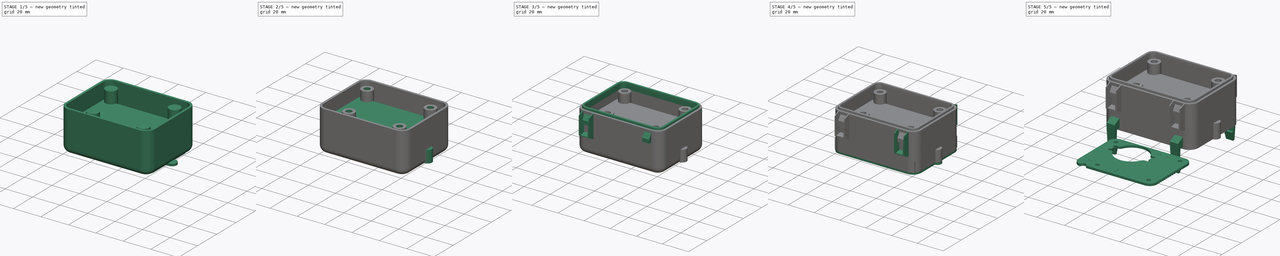
[diagram: build sequence overview — one tinted view per stage of 5, left to right]
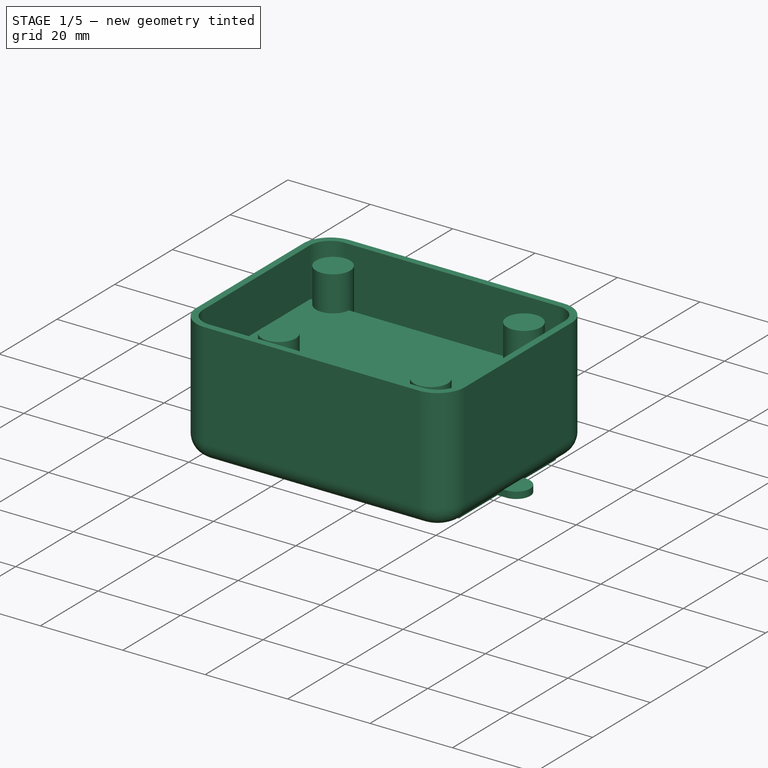
[diagram: stage 1 of 5 — iso view after this stage's code; geometry added in this stage tinted green]
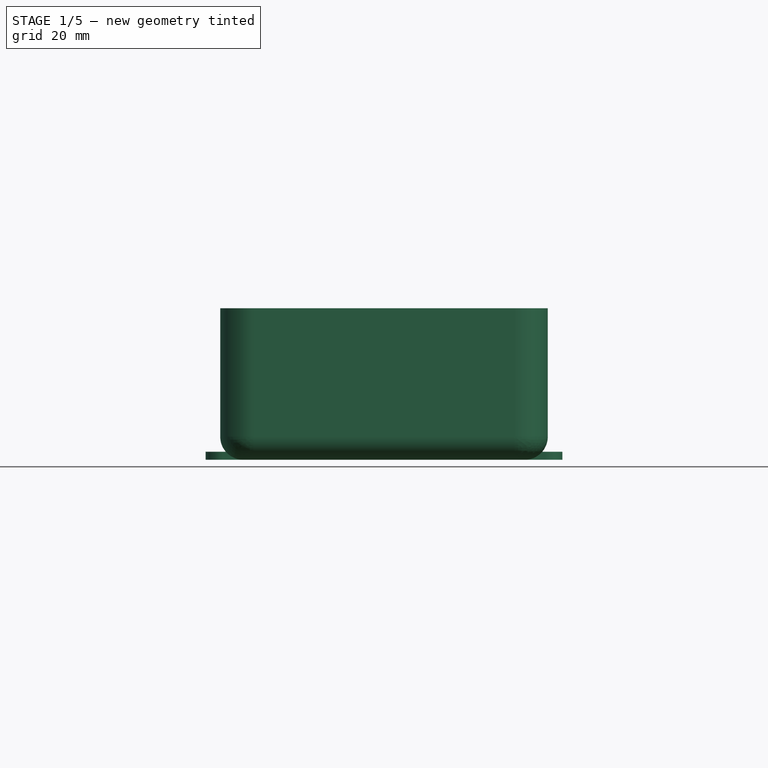
[diagram: stage 1 of 5 — front view after this stage's code; geometry added in this stage tinted green]
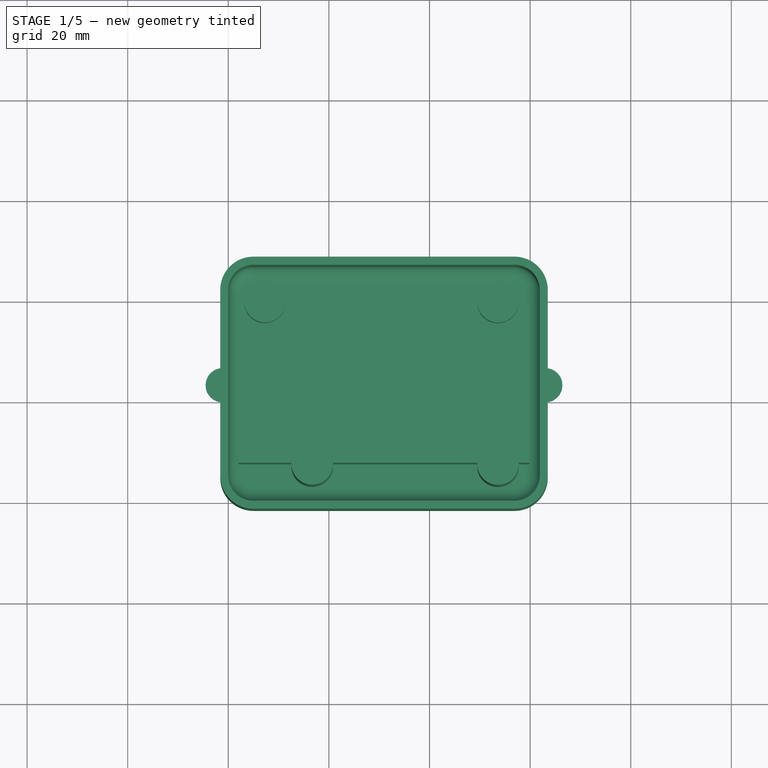
[diagram: stage 1 of 5 — top view after this stage's code; geometry added in this stage tinted green]
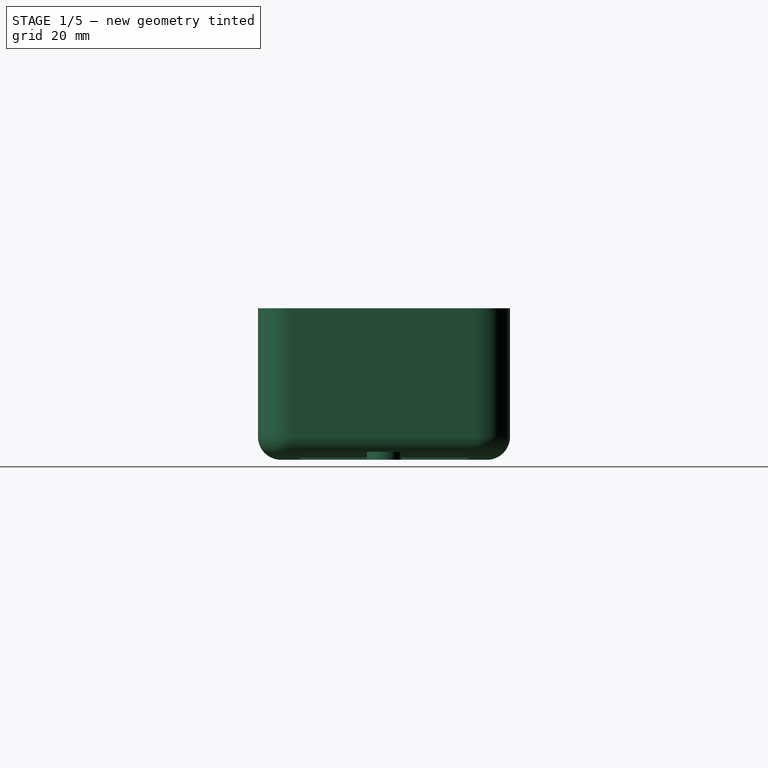
[diagram: stage 1 of 5 — right view after this stage's code; geometry added in this stage tinted green]
FCSTD DOCUMENT  (FreeCAD 0.21R33771 (Git))
Label: Enclosure
License: All rights reserved
LicenseURL: http://en.wikipedia.org/wiki/All_rights_reserved
objects: App::Part×35, Part::Feature×31, PartDesign::Pad×23, Sketcher::SketchObject×21, PartDesign::Body×16, PartDesign::Fillet×8, PartDesign::Boolean×8, PartDesign::Plane×7, PartDesign::CoordinateSystem×6, PartDesign::Thickness×6, PartDesign::Mirrored×6, PartDesign::Pocket×5, PartDesign::ShapeBinder×4, App::DocumentObjectGroup×3, App::Link×3, PartDesign::Hole×3, PartDesign::MultiTransform×3, PartDesign::Chamfer×3, Spreadsheet::Sheet×2, App::FeaturePython×1, +2 more types
note: 200 computed .brp shape members not serialized (recipe doc carries the construction recipe); baked Part::Feature solids carry a one-line shape summary decoded from their .brp

FEATURE [Sketcher::SketchObject] Sketch
  FullyConstrained = true
  MapMode = 5
  Support = -> [XY_Plane039]
  expr: Constraints[10] = <<dim>>.encw
  expr: Constraints[9] = <<dim>>.encl
  sketch-geometry (4):
    g0: LineSegment StartX=0 StartY=0 StartZ=0 EndX=61.91 EndY=0 EndZ=0
    g1: LineSegment StartX=61.91 StartY=0 StartZ=0 EndX=61.91 EndY=46.91 EndZ=0
    g2: LineSegment StartX=61.91 StartY=46.91 StartZ=0 EndX=0 EndY=46.91 EndZ=0
    g3: LineSegment StartX=0 StartY=46.91 StartZ=0 EndX=0 EndY=0 EndZ=0
  constraints (11):
    c: Coincident(g0,g1)
    c: Coincident(g1,g2)
    c: Coincident(g2,g3)
    c: Coincident(g3,g0)
    c: Horizontal(g0)
    c: Horizontal(g2)
    c: Vertical(g1)
    c: Vertical(g3)
    c: Coincident(g0,g-1)
    c: Distance(g2) = 61.91
    c: Distance(g1) = 46.91
FEATURE [PartDesign::Pad] Pad001
  Direction = (0,0,1)
  Length = 28.535
  Length2 = 10
  Profile = -> Sketch
  ReferenceAxis = -> Sketch [N_Axis]
  Type = 0
  expr: Length = <<dim>>.ench
FEATURE [PartDesign::Fillet] Fillet
  Base = -> Pad001 [Edge1,Edge2,Edge5,Edge8]
  BaseFeature = -> Pad001
  Radius = 5
  SupportTransform = false
  UseAllEdges = false
  expr: Radius = <<dim>>.encrin
FEATURE [PartDesign::Pad] Pad003
  Direction = (0,0,1)
  Length = 26.935
  Length2 = 10
  Profile = -> Sketch002
  ReferenceAxis = -> Sketch002 [N_Axis]
  Type = 0
  expr: Length = <<dim>>.ench - <<dim>>.pcbh
FEATURE [PartDesign::Body] standoffs  label="standoff1"
  Group = -> [LCS_0,Sketch002,Pad003]
  Origin = -> Origin040
  Tip = -> Pad003
FEATURE [App::Link] Elephant0_9_2_002  label="Elephant0.9.2 002"
  AttachedBy = #LCS_1
  AttachedTo = Parent Assembly#LCS_Origin
  LinkPlacement = pos=(-45.981,37.719,-4.2e-15) rot=(0,0,1.11173;0rad)
  LinkedObject = -> Elephant0_9_2_1
  Placement = pos=(-45.981,37.719,-4.2e-15) rot=(0,0,1.11173;0rad)
  SolverId = Asm4EE
  expr: Placement = LCS_Origin.Placement * AttachmentOffset * LCS_1.Placement ^ -1
FEATURE [App::Link] enclosure  label="enclosure001"
  AttachedBy = #LCS_enc
  AttachedTo = Parent Assembly#LCS_Origin
  LinkPlacement = pos=(-30.955,-23.455,-26.935) rot=(0,0,1;0rad)
  LinkedObject = -> Part
  Placement = pos=(-30.955,-23.455,-26.935) rot=(0,0,1;0rad)
  SolverId = Asm4EE
  expr: Placement = LCS_Origin.Placement * AttachmentOffset * LCS_enc.Placement ^ -1
FEATURE [Sketcher::SketchObject] Sketch007
  FullyConstrained = true
  MapMode = 5
  Support = -> [XY_Plane040]
  expr: Constraints[11] = <<dim>>.pcbh2x
  expr: Constraints[12] = <<dim>>.pcbh2y
  expr: Constraints[13] = <<dim>>.pcbh3x
  expr: Constraints[14] = <<dim>>.pcbh3y
  expr: Constraints[15] = <<dim>>.pcbh4x
  expr: Constraints[16] = <<dim>>.pcbh4y
  expr: Constraints[17] = <<dim>>.pcbh1x
  expr: Constraints[18] = <<dim>>.pcbh1y
  expr: Constraints[2] = <<dim>>.hid
  expr: Constraints[30] = <<dim>>.hit
  expr: Constraints[41] = <<dim>>.encl / 2
  expr: Constraints[42] = <<dim>>.encw / 2
  expr: Constraints[44] = <<dim>>.pcbl / 2
  expr: Constraints[45] = <<dim>>.pcbw / 2
  sketch-geometry (17):
    g0: Circle CenterX=7.289 CenterY=39.62 CenterZ=0 NormalX=0 NormalY=0 NormalZ=1 AngleXU=0 Radius=2.139
    g1: Circle CenterX=16.687 CenterY=7.362 CenterZ=0 NormalX=0 NormalY=0 NormalZ=1 AngleXU=0 Radius=2.139
    g2: Circle CenterX=53.618 CenterY=39.584 CenterZ=0 NormalX=0 NormalY=0 NormalZ=1 AngleXU=0 Radius=2.139
    g3: Circle CenterX=53.618 CenterY=7.326 CenterZ=0 NormalX=0 NormalY=0 NormalZ=1 AngleXU=0 Radius=2.139
    g4: LineSegment StartX=30.955 StartY=23.455 StartZ=0 EndX=2.5 EndY=23.455 EndZ=0
    g5: LineSegment StartX=2.5 StartY=23.455 StartZ=0 EndX=2.5 EndY=2.5 EndZ=0
    g6: LineSegment StartX=2.5 StartY=2.5 StartZ=0 EndX=30.955 EndY=2.5 EndZ=0
    g7: LineSegment StartX=30.955 StartY=2.5 StartZ=0 EndX=30.955 EndY=23.455 EndZ=0
    g8: Circle CenterX=7.289 CenterY=39.62 CenterZ=0 NormalX=0 NormalY=0 NormalZ=1 AngleXU=0 Radius=4.139
    g9: Circle CenterX=16.687 CenterY=7.362 CenterZ=0 NormalX=0 NormalY=0 NormalZ=1 AngleXU=0 Radius=4.139
    g10: Circle CenterX=53.618 CenterY=7.326 CenterZ=0 NormalX=0 NormalY=0 NormalZ=1 AngleXU=0 Radius=4.139
    g11: Circle CenterX=53.618 CenterY=39.584 CenterZ=0 NormalX=0 NormalY=0 NormalZ=1 AngleXU=0 Radius=4.139
    g12: LineSegment StartX=14.548 StartY=7.362 StartZ=0 EndX=12.548 EndY=7.362 EndZ=0
    g13: LineSegment StartX=0 StartY=0 StartZ=0 EndX=30.955 EndY=0 EndZ=0
    g14: LineSegment StartX=30.955 StartY=0 StartZ=0 EndX=30.955 EndY=23.455 EndZ=0
    g15: LineSegment StartX=30.955 StartY=23.455 StartZ=0 EndX=0 EndY=23.455 EndZ=0
    g16: LineSegment StartX=0 StartY=23.455 StartZ=0 EndX=0 EndY=0 EndZ=0
  constraints (46):
    c: Equal(g1,g3)
    c: Equal(g3,g2)
    c: Diameter(g1) = 4.278
    c: Coincident(g4,g5)
    c: Coincident(g5,g6)
    c: Coincident(g6,g7)
    c: Coincident(g7,g4)
    c: Horizontal(g4)
    c: Horizontal(g6)
    c: Vertical(g5)
    c: Vertical(g7)
    c: DistanceX(g5,g2) = 51.118
    c: DistanceY(g5,g2) = 37.084
    c: DistanceX(g5,g3) = 51.118
    c: DistanceY(g5,g3) = 4.826
    c: DistanceX(g5,g1) = 14.187
    c: DistanceY(g5,g1) = 4.862
    c: DistanceX(g5,g0) = 4.789
    c: DistanceY(g5,g0) = 37.12
    c: Coincident(g8,g0)
    c: Coincident(g9,g1)
    c: Coincident(g10,g3)
    c: Coincident(g11,g2)
    c: Equal(g8,g11)
    c: Equal(g11,g10)
    c: Equal(g10,g9)
    c: PointOnObject(g12,g1)
    c: PointOnObject(g12,g9)
    c: Horizontal(g12)
    c: Horizontal(g12,g1)
    c: Distance(g12) = 2
    c: Equal(g0,g1)
    c: Coincident(g13,g14)
    c: Coincident(g14,g15)
    c: Coincident(g15,g16)
    c: Coincident(g16,g13)
    c: Horizontal(g13)
    c: Horizontal(g15)
    c: Vertical(g14)
    c: Vertical(g16)
    c: Coincident(g13,g-1)
    c: Distance(g15) = 30.955
    c: Distance(g14) = 23.455
    c: Coincident(g4,g14)
    c: Distance(g6) = 28.455
    c: Distance(g5) = 20.955
FEATURE [PartDesign::Pad] Pad007
  Direction = (0,0,1)
  Length = 26.935
  Length2 = 10
  Profile = -> Sketch007
  ReferenceAxis = -> Sketch007 [N_Axis]
  Type = 0
  expr: Length = <<dim>>.ench - <<dim>>.pcbh
FEATURE [PartDesign::Body] standoffs004  label="standoff2"
  Group = -> [Sketch007,Pad007]
  Origin = -> Origin045
  Tip = -> Pad007
FEATURE [Sketcher::SketchObject] Sketch008
  FullyConstrained = true
  MapMode = 5
  Support = -> [XY_Plane040]
  expr: Constraints[11] = <<dim>>.pcbh2x
  expr: Constraints[12] = <<dim>>.pcbh2y
  expr: Constraints[13] = <<dim>>.pcbh3x
  expr: Constraints[14] = <<dim>>.pcbh3y
  expr: Constraints[15] = <<dim>>.pcbh4x
  expr: Constraints[16] = <<dim>>.pcbh4y
  expr: Constraints[17] = <<dim>>.pcbh1x
  expr: Constraints[18] = <<dim>>.pcbh1y
  expr: Constraints[2] = <<dim>>.hid
  expr: Constraints[30] = <<dim>>.hit
  expr: Constraints[41] = <<dim>>.encl / 2
  expr: Constraints[42] = <<dim>>.encw / 2
  expr: Constraints[44] = <<dim>>.pcbl / 2
  expr: Constraints[45] = <<dim>>.pcbw / 2
  sketch-geometry (17):
    g0: Circle CenterX=7.289 CenterY=39.62 CenterZ=0 NormalX=0 NormalY=0 NormalZ=1 AngleXU=0 Radius=2.139
    g1: Circle CenterX=16.687 CenterY=7.362 CenterZ=0 NormalX=0 NormalY=0 NormalZ=1 AngleXU=0 Radius=2.139
    g2: Circle CenterX=53.618 CenterY=39.584 CenterZ=0 NormalX=0 NormalY=0 NormalZ=1 AngleXU=0 Radius=2.139
    g3: Circle CenterX=53.618 CenterY=7.326 CenterZ=0 NormalX=0 NormalY=0 NormalZ=1 AngleXU=0 Radius=2.139
    g4: LineSegment StartX=30.955 StartY=23.455 StartZ=0 EndX=2.5 EndY=23.455 EndZ=0
    g5: LineSegment StartX=2.5 StartY=23.455 StartZ=0 EndX=2.5 EndY=2.5 EndZ=0
    g6: LineSegment StartX=2.5 StartY=2.5 StartZ=0 EndX=30.955 EndY=2.5 EndZ=0
    g7: LineSegment StartX=30.955 StartY=2.5 StartZ=0 EndX=30.955 EndY=23.455 EndZ=0
    g8: Circle CenterX=7.289 CenterY=39.62 CenterZ=0 NormalX=0 NormalY=0 NormalZ=1 AngleXU=0 Radius=4.139
    g9: Circle CenterX=16.687 CenterY=7.362 CenterZ=0 NormalX=0 NormalY=0 NormalZ=1 AngleXU=0 Radius=4.139
    g10: Circle CenterX=53.618 CenterY=7.326 CenterZ=0 NormalX=0 NormalY=0 NormalZ=1 AngleXU=0 Radius=4.139
    g11: Circle CenterX=53.618 CenterY=39.584 CenterZ=0 NormalX=0 NormalY=0 NormalZ=1 AngleXU=0 Radius=4.139
    g12: LineSegment StartX=14.548 StartY=7.362 StartZ=0 EndX=12.548 EndY=7.362 EndZ=0
    g13: LineSegment StartX=0 StartY=0 StartZ=0 EndX=30.955 EndY=0 EndZ=0
    g14: LineSegment StartX=30.955 StartY=0 StartZ=0 EndX=30.955 EndY=23.455 EndZ=0
    g15: LineSegment StartX=30.955 StartY=23.455 StartZ=0 EndX=0 EndY=23.455 EndZ=0
    g16: LineSegment StartX=0 StartY=23.455 StartZ=0 EndX=0 EndY=0 EndZ=0
  constraints (46):
    c: Equal(g1,g3)
    c: Equal(g3,g2)
    c: Diameter(g1) = 4.278
    c: Coincident(g4,g5)
    c: Coincident(g5,g6)
    c: Coincident(g6,g7)
    c: Coincident(g7,g4)
    c: Horizontal(g4)
    c: Horizontal(g6)
    c: Vertical(g5)
    c: Vertical(g7)
    c: DistanceX(g5,g2) = 51.118
    c: DistanceY(g5,g2) = 37.084
    c: DistanceX(g5,g3) = 51.118
    c: DistanceY(g5,g3) = 4.826
    c: DistanceX(g5,g1) = 14.187
    c: DistanceY(g5,g1) = 4.862
    c: DistanceX(g5,g0) = 4.789
    c: DistanceY(g5,g0) = 37.12
    c: Coincident(g8,g0)
    c: Coincident(g9,g1)
    c: Coincident(g10,g3)
    c: Coincident(g11,g2)
    c: Equal(g8,g11)
    c: Equal(g11,g10)
    c: Equal(g10,g9)
    c: PointOnObject(g12,g1)
    c: PointOnObject(g12,g9)
    c: Horizontal(g12)
    c: Horizontal(g12,g1)
    c: Distance(g12) = 2
    c: Equal(g0,g1)
    c: Coincident(g13,g14)
    c: Coincident(g14,g15)
    c: Coincident(g15,g16)
    c: Coincident(g16,g13)
    c: Horizontal(g13)
    c: Horizontal(g15)
    c: Vertical(g14)
    c: Vertical(g16)
    c: Coincident(g13,g-1)
    c: Distance(g15) = 30.955
    c: Distance(g14) = 23.455
    c: Coincident(g4,g14)
    c: Distance(g6) = 28.455
    c: Distance(g5) = 20.955
FEATURE [PartDesign::Pad] Pad008
  Direction = (0,0,1)
  Length = 26.935
  Length2 = 10
  Profile = -> Sketch008
  ReferenceAxis = -> Sketch008 [N_Axis]
  Type = 0
  expr: Length = <<dim>>.ench - <<dim>>.pcbh
FEATURE [PartDesign::Body] standoffs005  label="standoff3"
  Group = -> [Sketch008,Pad008]
  Origin = -> Origin046
  Tip = -> Pad008
FEATURE [Sketcher::SketchObject] Sketch009
  FullyConstrained = true
  MapMode = 5
  Support = -> [XY_Plane040]
  expr: Constraints[11] = <<dim>>.pcbh2x
  expr: Constraints[12] = <<dim>>.pcbh2y
  expr: Constraints[13] = <<dim>>.pcbh3x
  expr: Constraints[14] = <<dim>>.pcbh3y
  expr: Constraints[15] = <<dim>>.pcbh4x
  expr: Constraints[16] = <<dim>>.pcbh4y
  expr: Constraints[17] = <<dim>>.pcbh1x
  expr: Constraints[18] = <<dim>>.pcbh1y
  expr: Constraints[2] = <<dim>>.hid
  expr: Constraints[30] = <<dim>>.hit
  expr: Constraints[41] = <<dim>>.encl / 2
  expr: Constraints[42] = <<dim>>.encw / 2
  expr: Constraints[44] = <<dim>>.pcbl / 2
  expr: Constraints[45] = <<dim>>.pcbw / 2
  sketch-geometry (17):
    g0: Circle CenterX=7.289 CenterY=39.62 CenterZ=0 NormalX=0 NormalY=0 NormalZ=1 AngleXU=0 Radius=2.139
    g1: Circle CenterX=16.687 CenterY=7.362 CenterZ=0 NormalX=0 NormalY=0 NormalZ=1 AngleXU=0 Radius=2.139
    g2: Circle CenterX=53.618 CenterY=39.584 CenterZ=0 NormalX=0 NormalY=0 NormalZ=1 AngleXU=0 Radius=2.139
    g3: Circle CenterX=53.618 CenterY=7.326 CenterZ=0 NormalX=0 NormalY=0 NormalZ=1 AngleXU=0 Radius=2.139
    g4: LineSegment StartX=30.955 StartY=23.455 StartZ=0 EndX=2.5 EndY=23.455 EndZ=0
    g5: LineSegment StartX=2.5 StartY=23.455 StartZ=0 EndX=2.5 EndY=2.5 EndZ=0
    g6: LineSegment StartX=2.5 StartY=2.5 StartZ=0 EndX=30.955 EndY=2.5 EndZ=0
    g7: LineSegment StartX=30.955 StartY=2.5 StartZ=0 EndX=30.955 EndY=23.455 EndZ=0
    g8: Circle CenterX=7.289 CenterY=39.62 CenterZ=0 NormalX=0 NormalY=0 NormalZ=1 AngleXU=0 Radius=4.139
    g9: Circle CenterX=16.687 CenterY=7.362 CenterZ=0 NormalX=0 NormalY=0 NormalZ=1 AngleXU=0 Radius=4.139
    g10: Circle CenterX=53.618 CenterY=7.326 CenterZ=0 NormalX=0 NormalY=0 NormalZ=1 AngleXU=0 Radius=4.139
    g11: Circle CenterX=53.618 CenterY=39.584 CenterZ=0 NormalX=0 NormalY=0 NormalZ=1 AngleXU=0 Radius=4.139
    g12: LineSegment StartX=14.548 StartY=7.362 StartZ=0 EndX=12.548 EndY=7.362 EndZ=0
    g13: LineSegment StartX=0 StartY=0 StartZ=0 EndX=30.955 EndY=0 EndZ=0
    g14: LineSegment StartX=30.955 StartY=0 StartZ=0 EndX=30.955 EndY=23.455 EndZ=0
    g15: LineSegment StartX=30.955 StartY=23.455 StartZ=0 EndX=0 EndY=23.455 EndZ=0
    g16: LineSegment StartX=0 StartY=23.455 StartZ=0 EndX=0 EndY=0 EndZ=0
  constraints (46):
    c: Equal(g1,g3)
    c: Equal(g3,g2)
    c: Diameter(g1) = 4.278
    c: Coincident(g4,g5)
    c: Coincident(g5,g6)
    c: Coincident(g6,g7)
    c: Coincident(g7,g4)
    c: Horizontal(g4)
    c: Horizontal(g6)
    c: Vertical(g5)
    c: Vertical(g7)
    c: DistanceX(g5,g2) = 51.118
    c: DistanceY(g5,g2) = 37.084
    c: DistanceX(g5,g3) = 51.118
    c: DistanceY(g5,g3) = 4.826
    c: DistanceX(g5,g1) = 14.187
    c: DistanceY(g5,g1) = 4.862
    c: DistanceX(g5,g0) = 4.789
    c: DistanceY(g5,g0) = 37.12
    c: Coincident(g8,g0)
    c: Coincident(g9,g1)
    c: Coincident(g10,g3)
    c: Coincident(g11,g2)
    c: Equal(g8,g11)
    c: Equal(g11,g10)
    c: Equal(g10,g9)
    c: PointOnObject(g12,g1)
    c: PointOnObject(g12,g9)
    c: Horizontal(g12)
    c: Horizontal(g12,g1)
    c: Distance(g12) = 2
    c: Equal(g0,g1)
    c: Coincident(g13,g14)
    c: Coincident(g14,g15)
    c: Coincident(g15,g16)
    c: Coincident(g16,g13)
    c: Horizontal(g13)
    c: Horizontal(g15)
    c: Vertical(g14)
    c: Vertical(g16)
    c: Coincident(g13,g-1)
    c: Distance(g15) = 30.955
    c: Distance(g14) = 23.455
    c: Coincident(g4,g14)
    c: Distance(g6) = 28.455
    c: Distance(g5) = 20.955
FEATURE [PartDesign::Pad] Pad009
  Direction = (0,0,1)
  Length = 26.935
  Length2 = 10
  Profile = -> Sketch009
  ReferenceAxis = -> Sketch009 [N_Axis]
  Type = 0
  expr: Length = <<dim>>.ench - <<dim>>.pcbh
FEATURE [PartDesign::Body] standoffs006  label="standoff4"
  Group = -> [Sketch009,Pad009]
  Origin = -> Origin047
  Tip = -> Pad009
FEATURE [Sketcher::SketchObject] Sketch010
  FullyConstrained = true
  MapMode = 5
  Support = -> [XY_Plane047]
  expr: Constraints[15] = <<dim>>.batl * (1 + <<dim>>.batc)
  expr: Constraints[16] = <<dim>>.batw * (1 + <<dim>>.batc)
  expr: Constraints[26] = <<dim>>.encl / 2
  expr: Constraints[27] = <<dim>>.encw / 2
  sketch-geometry (12):
    g0: LineSegment StartX=2.08 StartY=7.705 StartZ=0 EndX=59.83 EndY=7.705 EndZ=0
    g1: LineSegment StartX=59.83 StartY=7.705 StartZ=0 EndX=59.83 EndY=39.205 EndZ=0
    g2: LineSegment StartX=59.83 StartY=39.205 StartZ=0 EndX=2.08 EndY=39.205 EndZ=0
    g3: LineSegment StartX=2.08 StartY=39.205 StartZ=0 EndX=2.08 EndY=7.705 EndZ=0
    g4: LineSegment StartX=30.955 StartY=23.455 StartZ=0 EndX=2.08 EndY=23.455 EndZ=0
    g5: LineSegment StartX=2.08 StartY=23.455 StartZ=0 EndX=2.08 EndY=7.705 EndZ=0
    g6: LineSegment StartX=2.08 StartY=7.705 StartZ=0 EndX=30.955 EndY=7.705 EndZ=0
    g7: LineSegment StartX=30.955 StartY=7.705 StartZ=0 EndX=30.955 EndY=23.455 EndZ=0
    g8: LineSegment StartX=0 StartY=0 StartZ=0 EndX=30.955 EndY=0 EndZ=0
    g9: LineSegment StartX=30.955 StartY=0 StartZ=0 EndX=30.955 EndY=23.455 EndZ=0
    g10: LineSegment StartX=30.955 StartY=23.455 StartZ=0 EndX=0 EndY=23.455 EndZ=0
    g11: LineSegment StartX=0 StartY=23.455 StartZ=0 EndX=0 EndY=0 EndZ=0
  constraints (31):
    c: Coincident(g0,g1)
    c: Coincident(g1,g2)
    c: Coincident(g2,g3)
    c: Coincident(g3,g0)
    c: Horizontal(g0)
    c: Horizontal(g2)
    c: Vertical(g1)
    c: Vertical(g3)
    c: Coincident(g4,g5)
    c: Coincident(g5,g6)
    c: Coincident(g6,g7)
    c: Coincident(g7,g4)
    c: Horizontal(g4)
    c: Vertical(g7)
    c: Coincident(g5,g0)
    c: Distance(g2) = 57.75
    c: Distance(g1) = 31.5
    c: Coincident(g8,g9)
    c: Coincident(g9,g10)
    c: Coincident(g10,g11)
    c: Coincident(g11,g8)
    c: Horizontal(g8)
    c: Horizontal(g10)
    c: Vertical(g9)
    c: Vertical(g11)
    c: Coincident(g8,g-1)
    c: Distance(g10) = 30.955
    c: Distance(g9) = 23.455
    c: Coincident(g4,g9)
    c: Symmetric(g0,g0,g6)
    c: Symmetric(g0,g2,g4)
FEATURE [PartDesign::Pad] Pad010
  Direction = (0,0,1)
  Length = 18.375
  Length2 = 10
  Profile = -> Sketch010
  ReferenceAxis = -> Sketch010 [N_Axis]
  Type = 0
  expr: Length = <<dim>>.bath * (1 + <<dim>>.batc)
FEATURE [PartDesign::Pad] Pad012
  BaseFeature = -> Pad010
  Direction = (0,0,-1)
  Length = 1.6
  Length2 = 10
  Profile = -> Pad010 [Face5]
  Type = 0
  expr: Length = <<dim>>.enctsh
FEATURE [PartDesign::Body] Body002
  Group = -> [Sketch003,Pad002,Fillet001,Thickness002,ShapeBinder001,Binder,Pocket001,Pad013]
  Origin = -> Origin041
  Tip = -> Pad013
FEATURE [Sketcher::SketchObject] Sketch013
  FullyConstrained = true
  MapMode = 5
  Support = -> [XY_Plane047]
  expr: Constraints[15] = <<dim>>.batl * (1 + <<dim>>.batc) + <<dim>>.enctsh + 2 * <<dim>>.enctol
  expr: Constraints[16] = <<dim>>.batw * (1 + <<dim>>.batc) + <<dim>>.enctsh + 2 * <<dim>>.enctol
  expr: Constraints[26] = <<dim>>.encl / 2
  expr: Constraints[27] = <<dim>>.encw / 2
  expr: Constraints[47] = (<<dim>>.hid + <<dim>>.hit) / 2 + <<dim>>.enctol
  expr: Constraints[48] = <<dim>>.hid / 2
  sketch-geometry (22):
    g0: LineSegment StartX=1.026 StartY=6.651 StartZ=0 EndX=60.884 EndY=6.651 EndZ=0
    g1: LineSegment StartX=60.884 StartY=6.651 StartZ=0 EndX=60.884 EndY=40.259 EndZ=0
    g2: LineSegment StartX=60.884 StartY=40.259 StartZ=0 EndX=1.026 EndY=40.259 EndZ=0
    g3: LineSegment StartX=1.026 StartY=40.259 StartZ=0 EndX=1.026 EndY=6.651 EndZ=0
    g4: LineSegment StartX=30.955 StartY=23.455 StartZ=0 EndX=1.026 EndY=23.455 EndZ=0
    g5: LineSegment StartX=1.026 StartY=23.455 StartZ=0 EndX=1.026 EndY=6.651 EndZ=0
    g6: LineSegment StartX=1.026 StartY=6.651 StartZ=0 EndX=30.955 EndY=6.651 EndZ=0
    g7: LineSegment StartX=30.955 StartY=6.651 StartZ=0 EndX=30.955 EndY=23.455 EndZ=0
    g8: LineSegment StartX=0 StartY=0 StartZ=0 EndX=30.955 EndY=0 EndZ=0
    g9: LineSegment StartX=30.955 StartY=0 StartZ=0 EndX=30.955 EndY=23.455 EndZ=0
    g10: LineSegment StartX=30.955 StartY=23.455 StartZ=0 EndX=0 EndY=23.455 EndZ=0
    g11: LineSegment StartX=0 StartY=23.455 StartZ=0 EndX=0 EndY=0 EndZ=0
    g12: ArcOfCircle CenterX=-1.113 CenterY=23.455 CenterZ=0 NormalX=0 NormalY=0 NormalZ=1 AngleXU=0 Radius=3.393 StartAngle=1.5708 EndAngle=4.71239
    g13: ArcOfCircle CenterX=63.023 CenterY=23.455 CenterZ=0 NormalX=0 NormalY=0 NormalZ=1 AngleXU=0 Radius=3.393 StartAngle=4.71239 EndAngle=7.85398
    g14: LineSegment StartX=60.884 StartY=20.062 StartZ=0 EndX=63.023 EndY=20.062 EndZ=0
    g15: LineSegment StartX=-1.11301 StartY=20.062 StartZ=0 EndX=1.026 EndY=20.062 EndZ=0
    g16: LineSegment StartX=1.026 StartY=26.848 StartZ=0 EndX=-1.113 EndY=26.848 EndZ=0
    g17: LineSegment StartX=63.023 StartY=26.848 StartZ=0 EndX=60.884 EndY=26.848 EndZ=0
    g18: LineSegment StartX=1.026 StartY=26.848 StartZ=0 EndX=1.026 EndY=40.259 EndZ=0
    g19: LineSegment StartX=1.026 StartY=20.062 StartZ=0 EndX=1.026 EndY=6.651 EndZ=0
    g20: LineSegment StartX=60.884 StartY=26.848 StartZ=0 EndX=60.884 EndY=40.259 EndZ=0
    g21: LineSegment StartX=60.884 StartY=20.062 StartZ=0 EndX=60.884 EndY=6.651 EndZ=0
  constraints (57):
    c: Coincident(g0,g1)
    c: Coincident(g1,g2)
    c: Coincident(g2,g3)
    c: Coincident(g3,g0)
    c: Horizontal(g0)
    c: Horizontal(g2)
    c: Vertical(g1)
    c: Vertical(g3)
    c: Coincident(g4,g5)
    c: Coincident(g5,g6)
    c: Coincident(g6,g7)
    c: Coincident(g7,g4)
    c: Horizontal(g4)
    c: Vertical(g7)
    c: Coincident(g5,g0)
    c: Distance(g2) = 59.858
    c: Distance(g1) = 33.608
    c: Coincident(g8,g9)
    c: Coincident(g9,g10)
    c: Coincident(g10,g11)
    c: Coincident(g11,g8)
    c: Horizontal(g8)
    c: Horizontal(g10)
    c: Vertical(g9)
    c: Vertical(g11)
    c: Coincident(g8,g-1)
    c: Distance(g10) = 30.955
    c: Distance(g9) = 23.455
    c: Coincident(g4,g9)
    c: Symmetric(g0,g0,g6)
    c: Symmetric(g0,g2,g4)
    c: Coincident(g12,g15) = -1.5708
    c: Coincident(g14,g13) = -1.5708
    c: Equal(g12,g13)
    c: PointOnObject(g12,g10)
    c: Horizontal(g14)
    c: Horizontal(g15)
    c: PointOnObject(g16,g3)
    c: PointOnObject(g14,g1)
    c: PointOnObject(g17,g1)
    c: Symmetric(g12,g13,g4)
    c: Horizontal(g16)
    c: Horizontal(g17)
    c: Tangent(g16,g12) = -1.5708
    c: Tangent(g13,g17) = -1.5708
    c: Symmetric(g15,g16,g4)
    c: Horizontal(g15,g14)
    c: Radius(g12) = 3.393
    c: Distance(g16) = 2.139
    c: Coincident(g18,g16)
    c: Coincident(g18,g2)
    c: Coincident(g19,g15)
    c: Coincident(g19,g0)
    c: Coincident(g20,g17)
    c: Coincident(g20,g1)
    c: Coincident(g21,g14)
    c: Coincident(g21,g0)
FEATURE [PartDesign::Pad] Pad014
  Direction = (0,0,1)
  Length = 1.6
  Length2 = 10
  Profile = -> Sketch013
  ReferenceAxis = -> Sketch013 [N_Axis]
  Reversed = true
  Type = 0
  expr: Length = <<dim>>.enctsh
FEATURE [PartDesign::Body] Body009
  Group = -> [Sketch017,Pad018,Fillet003,Fillet004,Thickness003,Pad020,Boolean005,Boolean006,DatumPlane001,Sketch020,Pocket003,Hole002,Sketch025,Sketch027,Pad025,Pocket005,DatumPlane,DatumPlane005,MultiTransform001,Mirrored002,Mirrored003]
  Origin = -> Origin055
  Tip = -> MultiTransform001
FEATURE [App::Part] Part001  label="lid"
  Group = -> [Body009,LCS_lid]
  Origin = -> Origin054
  Placement = pos=(0,0,30.035) rot=(0,0,1;0rad)
  expr: .Placement.Base.z = <<dim>>.ench + <<dim>>.elh
FEATURE [PartDesign::Fillet] Fillet007
  Base = -> Fillet [Face2]
  BaseFeature = -> Fillet
  Radius = 3
  SupportTransform = false
  UseAllEdges = false
FEATURE [PartDesign::Thickness] Thickness
  Base = -> Fillet007 [Face4]
  BaseFeature = -> Fillet007
  Intersection = false
  Join = 0
  Mode = 0
  SupportTransform = false
  Value = 1.6
  expr: Value = <<dim>>.enctsh
FEATURE [PartDesign::CoordinateSystem] LCS_enc
  AttacherType = Attacher::AttachEngine3D
  AttachmentOffset = pos=(-25.055,-1.6,-32.555) rot=(-0.57735,0.57735,0.57735;2.0944rad)
  MapMode = 14
  Placement = pos=(30.955,23.455,26.935) rot=(0,0,1;0rad)
  Support = -> [Thickness]
  expr: .AttachmentOffset.Base.x = -(<<dim>>.encw / 2) - <<dim>>.enctsh
  expr: .AttachmentOffset.Base.y = -<<dim>>.pcbh
  expr: .AttachmentOffset.Base.z = -(<<dim>>.encl / 2) - <<dim>>.enctsh
FEATURE [PartDesign::CoordinateSystem] LCS_enc_pcb
  AttacherType = Attacher::AttachEngine3D
  AttachmentOffset = pos=(-28.455,-20.955,0) rot=(0,0,1;0rad)
  MapMode = 2
  Placement = pos=(2.5,2.5,26.935) rot=(0,0,1;0rad)
  Support = -> [LCS_enc]
  expr: .AttachmentOffset.Base.x = -<<dim>>.pcbl / 2
  expr: .AttachmentOffset.Base.y = -<<dim>>.pcbw / 2
FEATURE [PartDesign::Boolean] Boolean
  BaseFeature = -> Thickness
  Group = -> [standoffs,standoffs004,standoffs005,standoffs006]
  Type = 0
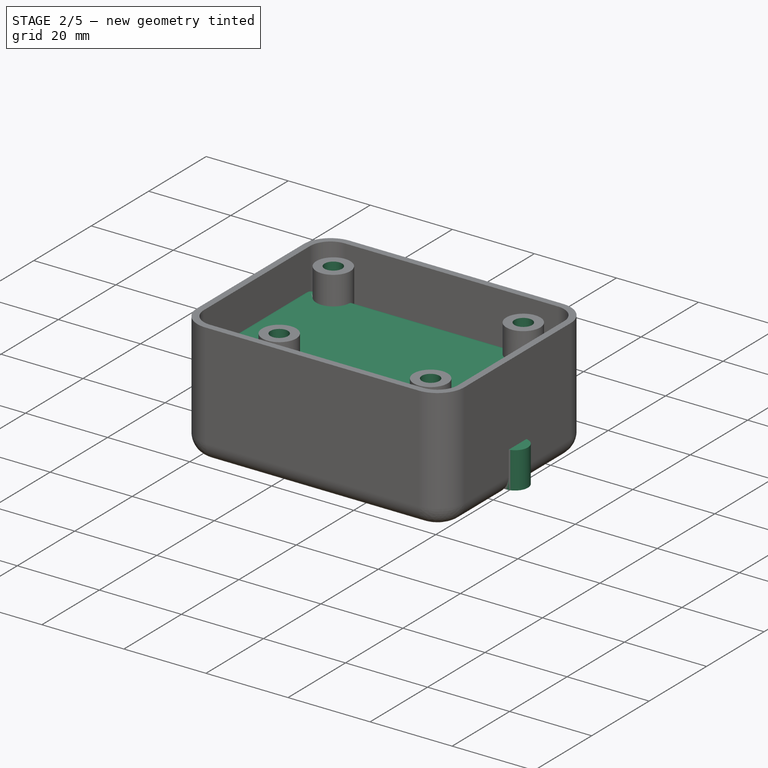
[diagram: stage 2 of 5 — iso view after this stage's code; geometry added in this stage tinted green]
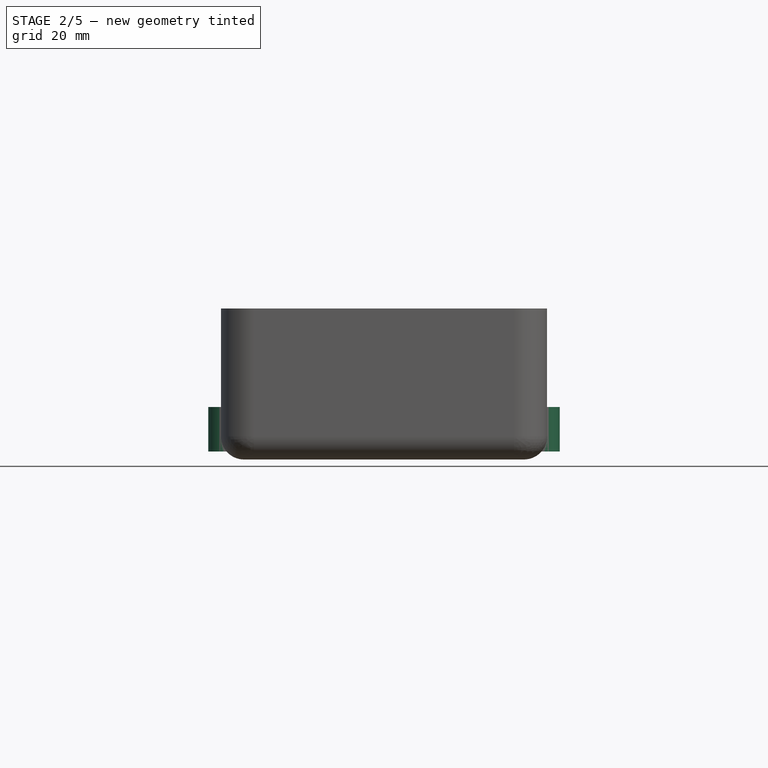
[diagram: stage 2 of 5 — front view after this stage's code; geometry added in this stage tinted green]
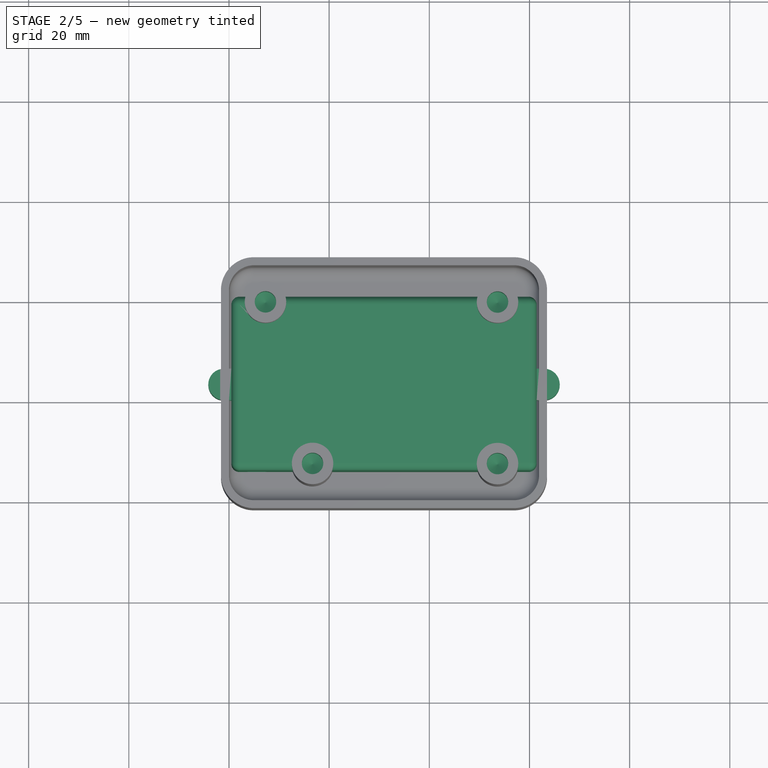
[diagram: stage 2 of 5 — top view after this stage's code; geometry added in this stage tinted green]
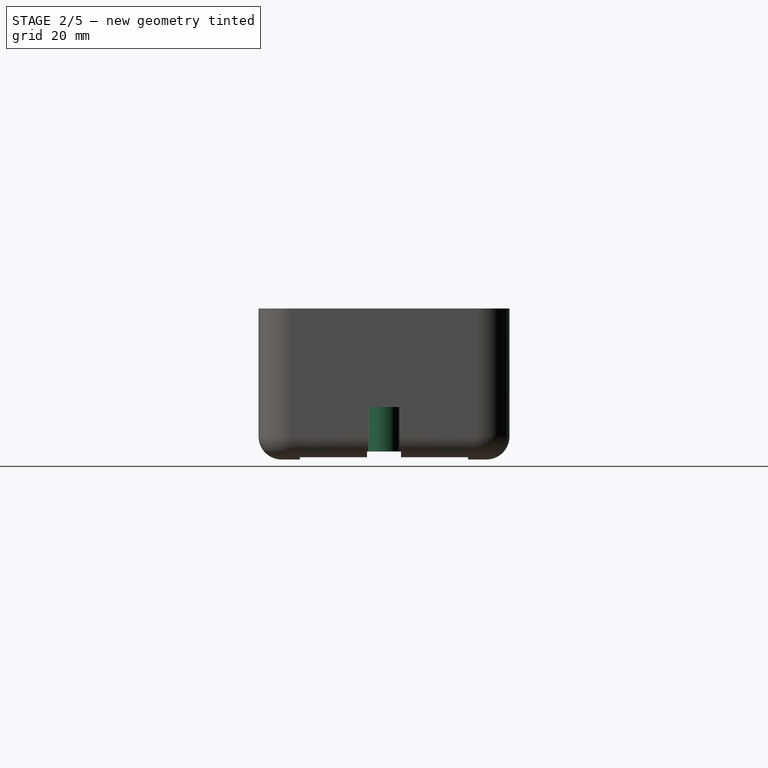
[diagram: stage 2 of 5 — right view after this stage's code; geometry added in this stage tinted green]
FEATURE [Sketcher::SketchObject] Sketch011
  FullyConstrained = true
  MapMode = 5
  Support = -> [XY_Plane047]
  expr: Constraints[15] = <<dim>>.batl * (1 + <<dim>>.batc)
  expr: Constraints[16] = <<dim>>.batw * (1 + <<dim>>.batc)
  expr: Constraints[26] = <<dim>>.encl / 2
  expr: Constraints[27] = <<dim>>.encw / 2
  sketch-geometry (12):
    g0: LineSegment StartX=2.08 StartY=7.705 StartZ=0 EndX=59.83 EndY=7.705 EndZ=0
    g1: LineSegment StartX=59.83 StartY=7.705 StartZ=0 EndX=59.83 EndY=39.205 EndZ=0
    g2: LineSegment StartX=59.83 StartY=39.205 StartZ=0 EndX=2.08 EndY=39.205 EndZ=0
    g3: LineSegment StartX=2.08 StartY=39.205 StartZ=0 EndX=2.08 EndY=7.705 EndZ=0
    g4: LineSegment StartX=30.955 StartY=23.455 StartZ=0 EndX=2.08 EndY=23.455 EndZ=0
    g5: LineSegment StartX=2.08 StartY=23.455 StartZ=0 EndX=2.08 EndY=7.705 EndZ=0
    g6: LineSegment StartX=2.08 StartY=7.705 StartZ=0 EndX=30.955 EndY=7.705 EndZ=0
    g7: LineSegment StartX=30.955 StartY=7.705 StartZ=0 EndX=30.955 EndY=23.455 EndZ=0
    g8: LineSegment StartX=0 StartY=0 StartZ=0 EndX=30.955 EndY=0 EndZ=0
    g9: LineSegment StartX=30.955 StartY=0 StartZ=0 EndX=30.955 EndY=23.455 EndZ=0
    g10: LineSegment StartX=30.955 StartY=23.455 StartZ=0 EndX=0 EndY=23.455 EndZ=0
    g11: LineSegment StartX=0 StartY=23.455 StartZ=0 EndX=0 EndY=0 EndZ=0
  constraints (31):
    c: Coincident(g0,g1)
    c: Coincident(g1,g2)
    c: Coincident(g2,g3)
    c: Coincident(g3,g0)
    c: Horizontal(g0)
    c: Horizontal(g2)
    c: Vertical(g1)
    c: Vertical(g3)
    c: Coincident(g4,g5)
    c: Coincident(g5,g6)
    c: Coincident(g6,g7)
    c: Coincident(g7,g4)
    c: Horizontal(g4)
    c: Vertical(g7)
    c: Coincident(g5,g0)
    c: Distance(g2) = 57.75
    c: Distance(g1) = 31.5
    c: Coincident(g8,g9)
    c: Coincident(g9,g10)
    c: Coincident(g10,g11)
    c: Coincident(g11,g8)
    c: Horizontal(g8)
    c: Horizontal(g10)
    c: Vertical(g9)
    c: Vertical(g11)
    c: Coincident(g8,g-1)
    c: Distance(g10) = 30.955
    c: Distance(g9) = 23.455
    c: Coincident(g4,g9)
    c: Symmetric(g0,g0,g6)
    c: Symmetric(g0,g2,g4)
FEATURE [PartDesign::Pad] Pad011
  Direction = (0,0,1)
  Length = 18.375
  Length2 = 10
  Profile = -> Sketch011
  ReferenceAxis = -> Sketch011 [N_Axis]
  Type = 0
  expr: Length = <<dim>>.bath * (1 + <<dim>>.batc)
FEATURE [PartDesign::Body] Body003  label="batteryboxinner"
  Group = -> [Sketch010,Pad010,Pad012]
  Origin = -> Origin048
  Tip = -> Pad012
FEATURE [PartDesign::Thickness] Thickness001
  Base = -> Pad011 [Face5]
  BaseFeature = -> Pad011
  Intersection = false
  Join = 0
  Mode = 0
  SupportTransform = false
  Value = 1.6
  expr: Value = <<dim>>.enctsh
FEATURE [Sketcher::SketchObject] Sketch012
  FullyConstrained = false
  MapMode = 5
  Placement = pos=(0,6.105,0) rot=(1,0,0;1.5708rad)
  Support = -> [Thickness001]
  expr: Constraints[10] = <<dim>>.enctsh
  expr: Constraints[11] = <<dim>>.batl * (<<dim>>.batc + 1) / 30
  expr: Constraints[9] = (<<dim>>.encl - <<dim>>.batl * (1 + <<dim>>.batc)) / 2
  sketch-geometry (5):
    g0: ArcOfCircle CenterX=5.55399 CenterY=2.00077 CenterZ=0 NormalX=0 NormalY=0 NormalZ=1 AngleXU=0 Radius=1.925 StartAngle=0 EndAngle=3.14159
    g1: LineSegment StartX=7.47899 StartY=0.400772 StartZ=0 EndX=7.47899 EndY=2.00077 EndZ=0
    g2: LineSegment StartX=3.62899 StartY=2.00077 StartZ=0 EndX=3.62899 EndY=0.400772 EndZ=0
    g3: LineSegment StartX=3.62899 StartY=0.400772 StartZ=0 EndX=7.47899 EndY=0.400772 EndZ=0
    g4: LineSegment StartX=0 StartY=0 StartZ=0 EndX=2.08 EndY=0 EndZ=0
  constraints (12):
    c: Tangent(g1,g0) = -1.5708
    c: Tangent(g0,g2) = -1.5708
    c: Vertical(g1)
    c: Horizontal(g3)
    c: Coincident(g2,g3)
    c: Coincident(g1,g3)
    c: Vertical(g2)
    c: Coincident(g4,g-1)
    c: PointOnObject(g4,g-1)
    c: Distance(g4) = 2.08
    c: Distance(g1,g0) = 1.6
    c: Radius(g0) = 1.925
FEATURE [PartDesign::Pocket] Pocket
  BaseFeature = -> Thickness001
  Direction = (0,1,-2e-16)
  Length = 1.6
  Length2 = 5
  Profile = -> Sketch012
  ReferenceAxis = -> Sketch012 [N_Axis]
  Type = 0
  expr: Length = <<dim>>.enctsh
FEATURE [PartDesign::Body] Body005  label="batterydoorneg"
  Group = -> [Sketch013,Pad014]
  Origin = -> Origin050
  Tip = -> Pad014
  expr: .Placement.Base.z = 0
FEATURE [Sketcher::SketchObject] Sketch014
  FullyConstrained = true
  MapMode = 5
  Support = -> [XY_Plane047]
  expr: Constraints[15] = <<dim>>.batl * (1 + <<dim>>.batc) + <<dim>>.enctsh + <<dim>>.enctol
  expr: Constraints[16] = <<dim>>.batw * (1 + <<dim>>.batc) + <<dim>>.enctsh
  expr: Constraints[26] = <<dim>>.encl / 2
  expr: Constraints[27] = <<dim>>.encw / 2
  expr: Constraints[38] = (<<dim>>.hid + <<dim>>.hit) / 2
  expr: Constraints[39] = <<dim>>.hid / 2
  sketch-geometry (16):
    g0: LineSegment StartX=1.153 StartY=6.905 StartZ=0 EndX=60.757 EndY=6.905 EndZ=0
    g1: LineSegment StartX=60.757 StartY=6.905 StartZ=0 EndX=60.757 EndY=40.005 EndZ=0
    g2: LineSegment StartX=60.757 StartY=40.005 StartZ=0 EndX=1.153 EndY=40.005 EndZ=0
    g3: LineSegment StartX=1.153 StartY=40.005 StartZ=0 EndX=1.153 EndY=6.905 EndZ=0
    g4: LineSegment StartX=30.955 StartY=23.455 StartZ=0 EndX=1.153 EndY=23.455 EndZ=0
    g5: LineSegment StartX=1.153 StartY=23.455 StartZ=0 EndX=1.153 EndY=6.905 EndZ=0
    g6: LineSegment StartX=1.153 StartY=6.905 StartZ=0 EndX=30.955 EndY=6.905 EndZ=0
    g7: LineSegment StartX=30.955 StartY=6.905 StartZ=0 EndX=30.955 EndY=23.455 EndZ=0
    g8: LineSegment StartX=0 StartY=0 StartZ=0 EndX=30.955 EndY=0 EndZ=0
    g9: LineSegment StartX=30.955 StartY=0 StartZ=0 EndX=30.955 EndY=23.455 EndZ=0
    g10: LineSegment StartX=30.955 StartY=23.455 StartZ=0 EndX=0 EndY=23.455 EndZ=0
    g11: LineSegment StartX=0 StartY=23.455 StartZ=0 EndX=0 EndY=0 EndZ=0
    g12: ArcOfCircle CenterX=-0.986 CenterY=23.455 CenterZ=0 NormalX=0 NormalY=0 NormalZ=1 AngleXU=0 Radius=3.139 StartAngle=1.5708 EndAngle=4.71238
    g13: LineSegment StartX=-0.986021 StartY=20.316 StartZ=0 EndX=1.153 EndY=20.316 EndZ=0
    g14: LineSegment StartX=1.153 StartY=26.594 StartZ=0 EndX=-0.986 EndY=26.594 EndZ=0
    g15: LineSegment StartX=1.153 StartY=26.594 StartZ=0 EndX=1.153 EndY=20.316 EndZ=0
  constraints (42):
    c: Coincident(g0,g1)
    c: Coincident(g1,g2)
    c: Coincident(g2,g3)
    c: Coincident(g3,g0)
    c: Horizontal(g0)
    c: Horizontal(g2)
    c: Vertical(g1)
    c: Vertical(g3)
    c: Coincident(g4,g5)
    c: Coincident(g5,g6)
    c: Coincident(g6,g7)
    c: Coincident(g7,g4)
    c: Horizontal(g4)
    c: Vertical(g7)
    c: Coincident(g5,g0)
    c: Distance(g2) = 59.604
    c: Distance(g1) = 33.1
    c: Coincident(g8,g9)
    c: Coincident(g9,g10)
    c: Coincident(g10,g11)
    c: Coincident(g11,g8)
    c: Horizontal(g8)
    c: Horizontal(g10)
    c: Vertical(g9)
    c: Vertical(g11)
    c: Coincident(g8,g-1)
    c: Distance(g10) = 30.955
    c: Distance(g9) = 23.455
    c: Coincident(g4,g9)
    c: Symmetric(g0,g0,g6)
    c: Symmetric(g0,g2,g4)
    c: Coincident(g12,g13) = -1.5708
    c: PointOnObject(g12,g10)
    c: Horizontal(g13)
    c: PointOnObject(g14,g3)
    c: Horizontal(g14)
    c: Tangent(g14,g12) = -1.5708
    c: Symmetric(g13,g14,g4)
    c: Radius(g12) = 3.139
    c: Distance(g14) = 2.139
    c: Coincident(g15,g14)
    c: Coincident(g15,g13)
FEATURE [PartDesign::Pad] Pad015
  Direction = (0,0,1)
  Length = 8.88
  Length2 = 10
  Profile = -> Sketch014
  ReferenceAxis = -> Sketch014 [N_Axis]
  Type = 0
  expr: Length = (<<dim>>.enctsh + <<dim>>.hil) * <<dim>>.hif
FEATURE [PartDesign::Body] Body007  label="batterydoor"
  Group = -> [Sketch015,Pad016]
  Origin = -> Origin052
  Tip = -> Pad016
  expr: .Placement.Base.z = 0
FEATURE [Sketcher::SketchObject] Sketch016
  FullyConstrained = true
  MapMode = 5
  Support = -> [XY_Plane047]
  expr: Constraints[15] = <<dim>>.batl * (1 + <<dim>>.batc) + <<dim>>.enctsh + <<dim>>.enctol
  expr: Constraints[16] = <<dim>>.batw * (1 + <<dim>>.batc) + <<dim>>.enctsh
  expr: Constraints[26] = <<dim>>.encl / 2
  expr: Constraints[27] = <<dim>>.encw / 2
  expr: Constraints[47] = (<<dim>>.hid + <<dim>>.hit) / 2
  expr: Constraints[48] = <<dim>>.hid / 2
  sketch-geometry (21):
    g0: LineSegment StartX=1.153 StartY=6.905 StartZ=0 EndX=60.757 EndY=6.905 EndZ=0
    g1: LineSegment StartX=60.757 StartY=6.905 StartZ=0 EndX=60.757 EndY=40.005 EndZ=0
    g2: LineSegment StartX=60.757 StartY=40.005 StartZ=0 EndX=1.153 EndY=40.005 EndZ=0
    g3: LineSegment StartX=1.153 StartY=40.005 StartZ=0 EndX=1.153 EndY=6.905 EndZ=0
    g4: LineSegment StartX=30.955 StartY=23.455 StartZ=0 EndX=1.153 EndY=23.455 EndZ=0
    g5: LineSegment StartX=1.153 StartY=23.455 StartZ=0 EndX=1.153 EndY=6.905 EndZ=0
    g6: LineSegment StartX=1.153 StartY=6.905 StartZ=0 EndX=30.955 EndY=6.905 EndZ=0
    g7: LineSegment StartX=30.955 StartY=6.905 StartZ=0 EndX=30.955 EndY=23.455 EndZ=0
    g8: LineSegment StartX=0 StartY=0 StartZ=0 EndX=30.955 EndY=0 EndZ=0
    g9: LineSegment StartX=30.955 StartY=0 StartZ=0 EndX=30.955 EndY=23.455 EndZ=0
    g10: LineSegment StartX=30.955 StartY=23.455 StartZ=0 EndX=0 EndY=23.455 EndZ=0
    g11: LineSegment StartX=0 StartY=23.455 StartZ=0 EndX=0 EndY=0 EndZ=0
    g12: ArcOfCircle CenterX=-0.986 CenterY=23.455 CenterZ=0 NormalX=0 NormalY=0 NormalZ=1 AngleXU=0 Radius=3.139 StartAngle=1.5708 EndAngle=4.71238
    g13: ArcOfCircle CenterX=62.896 CenterY=23.455 CenterZ=0 NormalX=0 NormalY=0 NormalZ=1 AngleXU=0 Radius=3.139 StartAngle=4.71239 EndAngle=7.85398
    g14: LineSegment StartX=60.757 StartY=20.316 StartZ=0 EndX=62.896 EndY=20.316 EndZ=0
    g15: LineSegment StartX=-0.986016 StartY=20.316 StartZ=0 EndX=1.153 EndY=20.316 EndZ=0
    g16: LineSegment StartX=1.153 StartY=26.594 StartZ=0 EndX=-0.986 EndY=26.594 EndZ=0
    g17: LineSegment StartX=62.896 StartY=26.594 StartZ=0 EndX=60.757 EndY=26.594 EndZ=0
    g18: LineSegment StartX=60.757 StartY=26.594 StartZ=0 EndX=60.757 EndY=40.005 EndZ=0
    g19: LineSegment StartX=60.757 StartY=20.316 StartZ=0 EndX=60.757 EndY=6.905 EndZ=0
    g20: LineSegment StartX=60.757 StartY=20.316 StartZ=0 EndX=60.757 EndY=26.594 EndZ=0
  constraints (55):
    c: Coincident(g0,g1)
    c: Coincident(g1,g2)
    c: Coincident(g2,g3)
    c: Coincident(g3,g0)
    c: Horizontal(g0)
    c: Horizontal(g2)
    c: Vertical(g1)
    c: Vertical(g3)
    c: Coincident(g4,g5)
    c: Coincident(g5,g6)
    c: Coincident(g6,g7)
    c: Coincident(g7,g4)
    c: Horizontal(g4)
    c: Vertical(g7)
    c: Coincident(g5,g0)
    c: Distance(g2) = 59.604
    c: Distance(g1) = 33.1
    c: Coincident(g8,g9)
    c: Coincident(g9,g10)
    c: Coincident(g10,g11)
    c: Coincident(g11,g8)
    c: Horizontal(g8)
    c: Horizontal(g10)
    c: Vertical(g9)
    c: Vertical(g11)
    c: Coincident(g8,g-1)
    c: Distance(g10) = 30.955
    c: Distance(g9) = 23.455
    c: Coincident(g4,g9)
    c: Symmetric(g0,g0,g6)
    c: Symmetric(g0,g2,g4)
    c: Coincident(g12,g15) = -1.5708
    c: Coincident(g14,g13) = -1.5708
    c: Equal(g12,g13)
    c: PointOnObject(g12,g10)
    c: Horizontal(g14)
    c: Horizontal(g15)
    c: PointOnObject(g16,g3)
    c: PointOnObject(g14,g1)
    c: PointOnObject(g17,g1)
    c: Symmetric(g12,g13,g4)
    c: Horizontal(g16)
    c: Horizontal(g17)
    c: Tangent(g16,g12) = -1.5708
    c: Tangent(g13,g17) = -1.5708
    c: Symmetric(g15,g16,g4)
    c: Horizontal(g15,g14)
    c: Radius(g12) = 3.139
    c: Distance(g16) = 2.139
    c: Coincident(g18,g17)
    c: Coincident(g18,g1)
    c: Coincident(g19,g14)
    c: Coincident(g19,g0)
    c: Coincident(g20,g14)
    c: Coincident(g20,g17)
FEATURE [PartDesign::Pad] Pad017
  Direction = (0,0,1)
  Length = 8.88
  Length2 = 10
  Profile = -> Sketch016
  ReferenceAxis = -> Sketch016 [N_Axis]
  Type = 0
  expr: Length = (<<dim>>.enctsh + <<dim>>.hil) * <<dim>>.hif
FEATURE [PartDesign::Boolean] Boolean001
  BaseFeature = -> Boolean
  Group = -> [Body003]
  Type = 1
FEATURE [PartDesign::Boolean] Boolean002
  BaseFeature = -> Boolean001
  Group = -> [Body004]
  Type = 0
FEATURE [PartDesign::Boolean] Boolean003
  BaseFeature = -> Boolean002
  Group = -> [Body005]
  Type = 1
FEATURE [PartDesign::Boolean] Boolean004
  BaseFeature = -> Boolean003
  Group = -> [Body006,Body008]
  Type = 0
FEATURE [PartDesign::Fillet] Fillet002
  Base = -> Boolean004 [Edge38,Edge200]
  BaseFeature = -> Boolean004
  Radius = 0.3
  SupportTransform = false
  UseAllEdges = false
FEATURE [PartDesign::ShapeBinder] ShapeBinder003
  Support = -> [Fillet002]
  TraceSupport = false
FEATURE [PartDesign::Hole] Hole
  BaseFeature = -> Fillet002
  CustomThreadClearance = 0
  Depth = 6.96
  DepthType = 0
  Diameter = 4.278
  DrillForDepth = false
  DrillPoint = 1
  DrillPointAngle = 118
  HoleCutCountersinkAngle = 40
  HoleCutCustomValues = false
  HoleCutDepth = 0
  HoleCutDiameter = 4.4919
  HoleCutType = 0
  ModelThread = false
  Profile = -> ShapeBinder003
  Tapered = false
  TaperedAngle = 90
  ThreadClass = 0
  ThreadDepth = 6.96
  ThreadDepthType = 0
  ThreadDirection = 0
  ThreadFit = 0
  ThreadSize = 0
  ThreadType = 0
  Threaded = false
  UseCustomThreadClearance = false
  expr: Depth = <<dim>>.hil * <<dim>>.hif
  expr: Diameter = <<dim>>.hid
  expr: HoleCutDiameter = <<dim>>.hid * 1.05
FEATURE [PartDesign::ShapeBinder] ShapeBinder002
  Support = -> [Hole]
  TraceSupport = false
FEATURE [PartDesign::Hole] Hole001
  BaseFeature = -> Hole
  CustomThreadClearance = 0
  Depth = 6.96
  DepthType = 0
  Diameter = 4.278
  DrillForDepth = false
  DrillPoint = 1
  DrillPointAngle = 118
  HoleCutCountersinkAngle = 10
  HoleCutCustomValues = false
  HoleCutDepth = 0
  HoleCutDiameter = 4.4919
  HoleCutType = 2
  ModelThread = false
  Profile = -> ShapeBinder002
  Tapered = false
  TaperedAngle = 90
  ThreadClass = 0
  ThreadDepth = 6.96
  ThreadDepthType = 0
  ThreadDirection = 0
  ThreadFit = 0
  ThreadSize = 0
  ThreadType = 0
  Threaded = false
  UseCustomThreadClearance = false
  expr: Depth = <<dim>>.hil * <<dim>>.hif
  expr: Diameter = <<dim>>.hid
  expr: HoleCutDiameter = <<dim>>.hid * 1.05
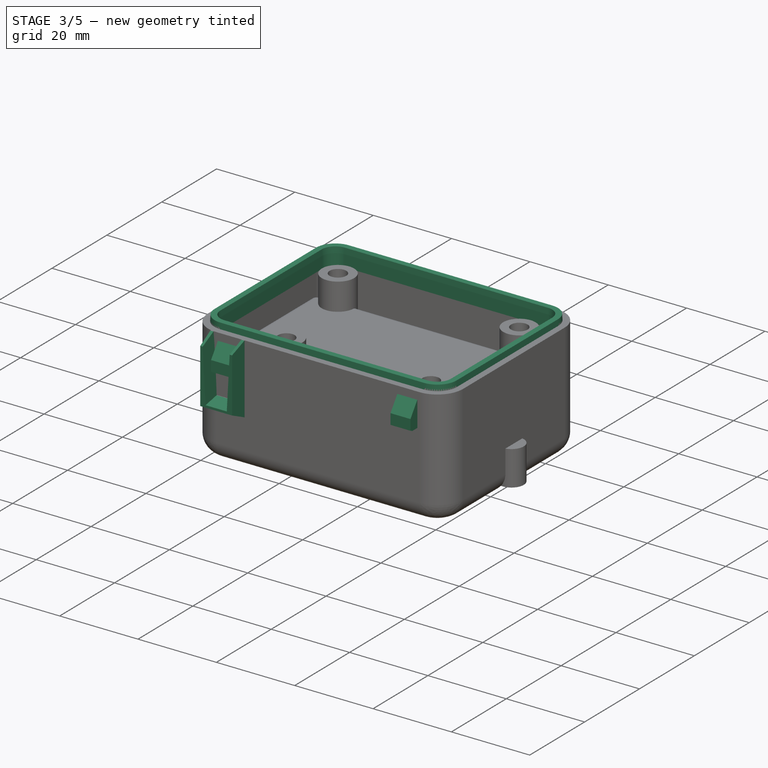
[diagram: stage 3 of 5 — iso view after this stage's code; geometry added in this stage tinted green]
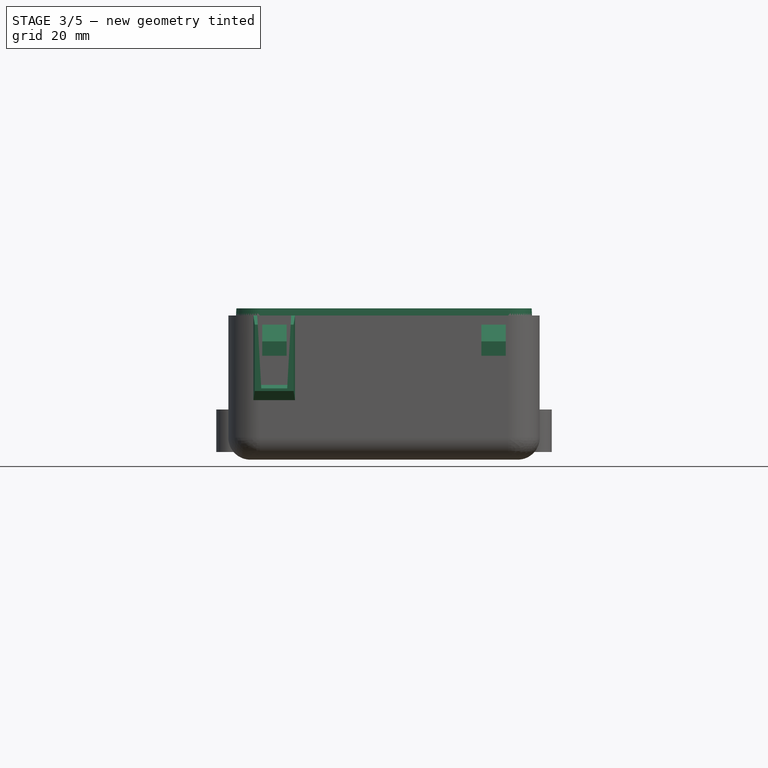
[diagram: stage 3 of 5 — front view after this stage's code; geometry added in this stage tinted green]
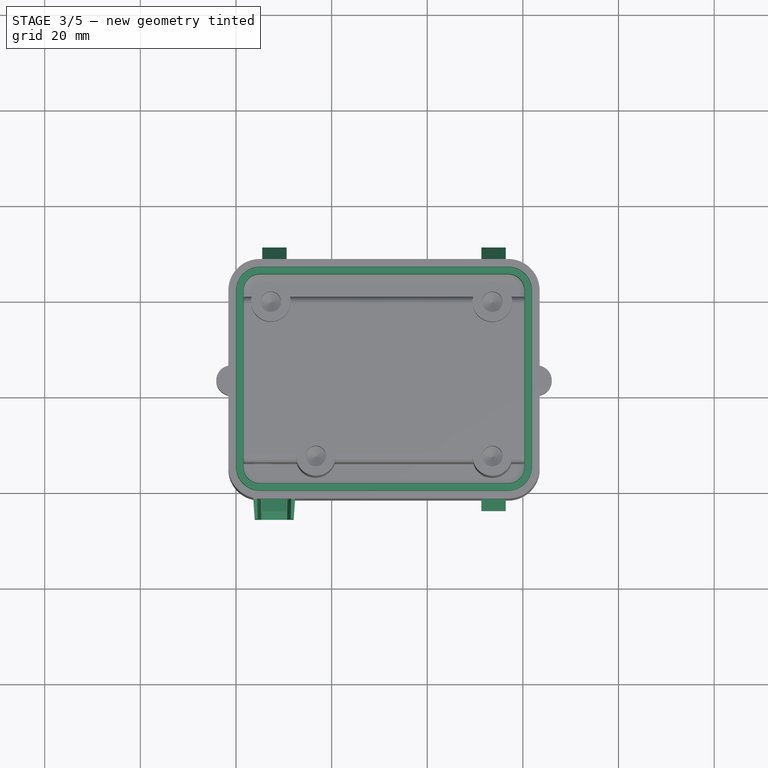
[diagram: stage 3 of 5 — top view after this stage's code; geometry added in this stage tinted green]
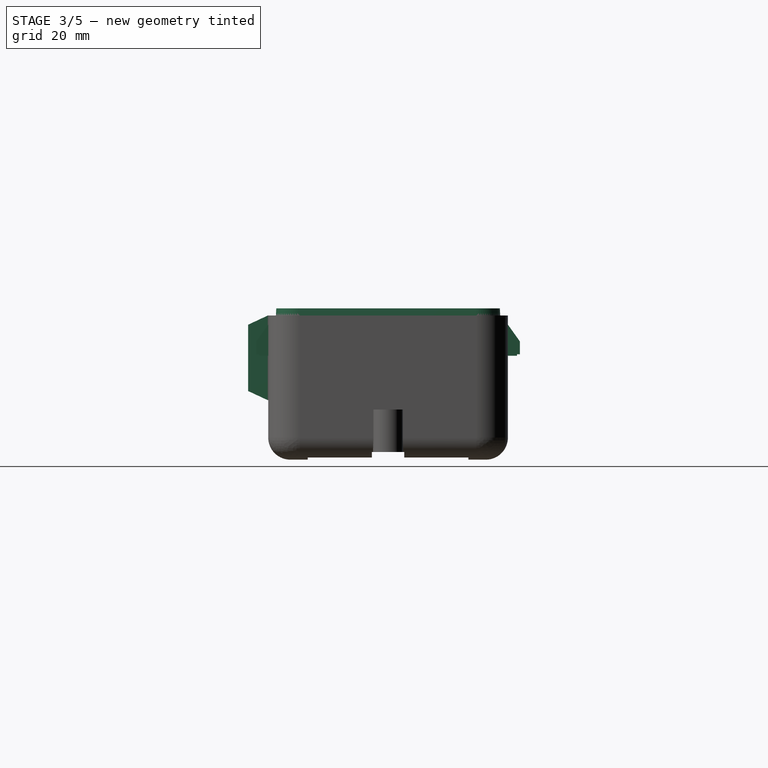
[diagram: stage 3 of 5 — right view after this stage's code; geometry added in this stage tinted green]
FEATURE [PartDesign::CoordinateSystem] LCS_1
  AttacherType = Attacher::AttachEngine3D
  AttachmentOffset = pos=(28.455,0,-20.955) rot=(-1,0,0;1.5708rad)
  MapMode = 14
  Placement = pos=(45.981,-37.719,0) rot=(0,0,-1.11173;0rad)
  Support = -> [Cut]
  expr: .AttachmentOffset.Base.x = <<dim>>.pcbl / 2
  expr: .AttachmentOffset.Base.z = -<<dim>>.pcbw / 2
FEATURE [App::Part] Elephant0_9_2_1  label="Elephant0.9.2 1"
  Group = -> [C_0201_0603Metric,C_0201_0603Metric001,C_0201_0603Metric002,QFN_20_1EP_4x4mm_P0_5mm_EP2_5x2_5mm,L_0402_1005Metric,C_0603_1608Metric,L_0402_1005Metric001,C_0603_1608Metric001,C_0201_0603Metric003,PinHeader_1x02_P2_54mm_Vertical,R_0603_1608Metric,C_0603_1608Metric002,TSSOP_8_4_4x3mm_P0_65mm,C_0201_0603Metric004,Crystal_SMD_3225_4Pin_3_2x2_5mm,QFN_48_1EP_7x7mm_P0_5mm_EP5_6x5_6mm,C_0201_0603Metric005,+17 more]
  Origin = -> Origin036
FEATURE [PartDesign::CoordinateSystem] LCS_0
  AttacherType = Attacher::AttachEngine3D
  MapMode = 2
  Support = -> [X_Axis040]
FEATURE [Sketcher::SketchObject] Sketch002
  FullyConstrained = true
  MapMode = 5
  Support = -> [XY_Plane040]
  expr: Constraints[11] = <<dim>>.pcbh2x
  expr: Constraints[12] = <<dim>>.pcbh2y
  expr: Constraints[13] = <<dim>>.pcbh3x
  expr: Constraints[14] = <<dim>>.pcbh3y
  expr: Constraints[15] = <<dim>>.pcbh4x
  expr: Constraints[16] = <<dim>>.pcbh4y
  expr: Constraints[17] = <<dim>>.pcbh1x
  expr: Constraints[18] = <<dim>>.pcbh1y
  expr: Constraints[2] = <<dim>>.hid
  expr: Constraints[30] = <<dim>>.hit
  expr: Constraints[41] = <<dim>>.encl / 2
  expr: Constraints[42] = <<dim>>.encw / 2
  expr: Constraints[44] = <<dim>>.pcbl / 2
  expr: Constraints[45] = <<dim>>.pcbw / 2
  sketch-geometry (17):
    g0: Circle CenterX=7.289 CenterY=39.62 CenterZ=0 NormalX=0 NormalY=0 NormalZ=1 AngleXU=0 Radius=2.139
    g1: Circle CenterX=16.687 CenterY=7.362 CenterZ=0 NormalX=0 NormalY=0 NormalZ=1 AngleXU=0 Radius=2.139
    g2: Circle CenterX=53.618 CenterY=39.584 CenterZ=0 NormalX=0 NormalY=0 NormalZ=1 AngleXU=0 Radius=2.139
    g3: Circle CenterX=53.618 CenterY=7.326 CenterZ=0 NormalX=0 NormalY=0 NormalZ=1 AngleXU=0 Radius=2.139
    g4: LineSegment StartX=30.955 StartY=23.455 StartZ=0 EndX=2.5 EndY=23.455 EndZ=0
    g5: LineSegment StartX=2.5 StartY=23.455 StartZ=0 EndX=2.5 EndY=2.5 EndZ=0
    g6: LineSegment StartX=2.5 StartY=2.5 StartZ=0 EndX=30.955 EndY=2.5 EndZ=0
    g7: LineSegment StartX=30.955 StartY=2.5 StartZ=0 EndX=30.955 EndY=23.455 EndZ=0
    g8: Circle CenterX=7.289 CenterY=39.62 CenterZ=0 NormalX=0 NormalY=0 NormalZ=1 AngleXU=0 Radius=4.139
    g9: Circle CenterX=16.687 CenterY=7.362 CenterZ=0 NormalX=0 NormalY=0 NormalZ=1 AngleXU=0 Radius=4.139
    g10: Circle CenterX=53.618 CenterY=7.326 CenterZ=0 NormalX=0 NormalY=0 NormalZ=1 AngleXU=0 Radius=4.139
    g11: Circle CenterX=53.618 CenterY=39.584 CenterZ=0 NormalX=0 NormalY=0 NormalZ=1 AngleXU=0 Radius=4.139
    g12: LineSegment StartX=14.548 StartY=7.362 StartZ=0 EndX=12.548 EndY=7.362 EndZ=0
    g13: LineSegment StartX=0 StartY=0 StartZ=0 EndX=30.955 EndY=0 EndZ=0
    g14: LineSegment StartX=30.955 StartY=0 StartZ=0 EndX=30.955 EndY=23.455 EndZ=0
    g15: LineSegment StartX=30.955 StartY=23.455 StartZ=0 EndX=0 EndY=23.455 EndZ=0
    g16: LineSegment StartX=0 StartY=23.455 StartZ=0 EndX=0 EndY=0 EndZ=0
  constraints (46):
    c: Equal(g1,g3)
    c: Equal(g3,g2)
    c: Diameter(g1) = 4.278
    c: Coincident(g4,g5)
    c: Coincident(g5,g6)
    c: Coincident(g6,g7)
    c: Coincident(g7,g4)
    c: Horizontal(g4)
    c: Horizontal(g6)
    c: Vertical(g5)
    c: Vertical(g7)
    c: DistanceX(g5,g2) = 51.118
    c: DistanceY(g5,g2) = 37.084
    c: DistanceX(g5,g3) = 51.118
    c: DistanceY(g5,g3) = 4.826
    c: DistanceX(g5,g1) = 14.187
    c: DistanceY(g5,g1) = 4.862
    c: DistanceX(g5,g0) = 4.789
    c: DistanceY(g5,g0) = 37.12
    c: Coincident(g8,g0)
    c: Coincident(g9,g1)
    c: Coincident(g10,g3)
    c: Coincident(g11,g2)
    c: Equal(g8,g11)
    c: Equal(g11,g10)
    c: Equal(g10,g9)
    c: PointOnObject(g12,g1)
    c: PointOnObject(g12,g9)
    c: Horizontal(g12)
    c: Horizontal(g12,g1)
    c: Distance(g12) = 2
    c: Equal(g0,g1)
    c: Coincident(g13,g14)
    c: Coincident(g14,g15)
    c: Coincident(g15,g16)
    c: Coincident(g16,g13)
    c: Horizontal(g13)
    c: Horizontal(g15)
    c: Vertical(g14)
    c: Vertical(g16)
    c: Coincident(g13,g-1)
    c: Distance(g15) = 30.955
    c: Distance(g14) = 23.455
    c: Coincident(g4,g14)
    c: Distance(g6) = 28.455
    c: Distance(g5) = 20.955
FEATURE [Sketcher::SketchObject] Sketch003
  FullyConstrained = true
  MapMode = 5
  Support = -> [XY_Plane039]
  expr: Constraints[10] = <<dim>>.encw
  expr: Constraints[9] = <<dim>>.encl
  sketch-geometry (4):
    g0: LineSegment StartX=0 StartY=0 StartZ=0 EndX=61.91 EndY=0 EndZ=0
    g1: LineSegment StartX=61.91 StartY=0 StartZ=0 EndX=61.91 EndY=46.91 EndZ=0
    g2: LineSegment StartX=61.91 StartY=46.91 StartZ=0 EndX=0 EndY=46.91 EndZ=0
    g3: LineSegment StartX=0 StartY=46.91 StartZ=0 EndX=0 EndY=0 EndZ=0
  constraints (11):
    c: Coincident(g0,g1)
    c: Coincident(g1,g2)
    c: Coincident(g2,g3)
    c: Coincident(g3,g0)
    c: Horizontal(g0)
    c: Horizontal(g2)
    c: Vertical(g1)
    c: Vertical(g3)
    c: Coincident(g0,g-1)
    c: Distance(g2) = 61.91
    c: Distance(g1) = 46.91
FEATURE [PartDesign::Pad] Pad002
  Direction = (0,0,1)
  Length = 28.535
  Length2 = 10
  Profile = -> Sketch003
  ReferenceAxis = -> Sketch003 [N_Axis]
  Type = 0
  expr: Length = <<dim>>.ench
FEATURE [PartDesign::Fillet] Fillet001
  Base = -> Pad002 [Edge1,Edge2,Edge3,Edge5,Edge6,Edge8,Edge9,Edge11]
  BaseFeature = -> Pad002
  Radius = 5
  SupportTransform = false
  UseAllEdges = false
  expr: Radius = <<dim>>.encrin
FEATURE [PartDesign::Body] Body004  label="batteryboxshell"
  Group = -> [Sketch011,Pad011,Thickness001,Sketch012,Pocket]
  Origin = -> Origin049
  Tip = -> Pocket
FEATURE [PartDesign::Thickness] Thickness002
  Base = -> Fillet001 [Face2]
  BaseFeature = -> Fillet001
  Intersection = false
  Join = 0
  Mode = 0
  Reversed = true
  SupportTransform = false
  Value = 1.6
  expr: Value = <<dim>>.enctsh
FEATURE [PartDesign::ShapeBinder] ShapeBinder001
  Support = -> [Thickness002]
  TraceSupport = false
FEATURE [PartDesign::SubShapeBinder] Binder
  BindCopyOnChange = 0
  BindMode = 0
  ClaimChildren = false
  Context = -> Part [Body002.Binder.]
  Fuse = false
  MakeFace = true
  OffsetFill = false
  OffsetIntersection = false
  OffsetJoinType = 0
  OffsetOpenResult = false
  PartialLoad = false
  Placement = pos=(0,0,-3) rot=(0,0,1;0rad)
  Relative = true
  Support = -> [ShapeBinder001]
  _Version = 2
  expr: .Placement.Base.z = -<<dim>>.eid
FEATURE [PartDesign::Pocket] Pocket001
  BaseFeature = -> Thickness002
  Direction = (0,0,-1)
  Length = 5
  Length2 = 5
  Profile = -> Binder
  Type = 1
FEATURE [PartDesign::Pad] Pad013
  BaseFeature = -> Pocket001
  Direction = (0,0,1)
  Length = 1.5
  Length2 = 10
  Profile = -> Pocket001 [Face5]
  TaperAngle = -3
  Type = 0
  expr: Length = <<dim>>.elh
  expr: TaperAngle = <<dim>>.elt
FEATURE [PartDesign::Boolean] Boolean007
  BaseFeature = -> Hole001
  Group = -> [Body002]
  Type = 0
FEATURE [PartDesign::Pad] Pad024
  BaseFeature = -> Boolean007
  Direction = (1,-1e-16,1e-16)
  Length = 5.1
  Length2 = 10
  Profile = -> Sketch022
  ReferenceAxis = -> Sketch022 [N_Axis]
  Type = 0
  expr: Length = <<hook>>.hookw + <<hook>>.hookc
FEATURE [PartDesign::MultiTransform] MultiTransform
  BaseFeature = -> Pad024
  Originals = -> [Pad024]
  Transformations = -> [Mirrored,Mirrored001]
FEATURE [App::Part] Part002  label="battery_door"
  Group = -> [Body007]
  Origin = -> Origin058
FEATURE [PartDesign::Plane] DatumPlane006
  AttachmentOffset = pos=(0,0,0.8) rot=(0,0,1;0rad)
  Length = 105.191
  MapMode = 5
  Placement = pos=(0,-0.8,-2e-16) rot=(1,0,0;1.5708rad)
  ResizeMode = 0
  Support = -> [XZ_Plane039]
  Width = 69.1914
  expr: .AttachmentOffset.Base.z = <<dim>>.enctsh / 2
FEATURE [Sketcher::SketchObject] Sketch028
  FullyConstrained = true
  MapMode = 5
  Placement = pos=(0,-0.8,-2e-16) rot=(1,0,0;1.5708rad)
  Support = -> [DatumPlane006]
  expr: Constraints[10] = <<dim>>.encrin - <<dim>>.enctol + (<<hook>>.shouldw - <<hook>>.hookw) / 2
  expr: Constraints[11] = <<hook>>.shouldl + <<hook>>.shaftl + <<hook>>.hookl + <<hook>>.hookc - (<<dim>>.pcbctop + <<dim>>.spd)
  expr: Constraints[12] = <<dim>>.enctsh
  expr: Constraints[15] = <<dim>>.enctsh / 2
  expr: Constraints[33] = <<hook>>.shouldw - (<<hook>>.shouldw - <<hook>>.hookw) / 2
  expr: Constraints[34] = <<dim>>.enctsh * 2
  expr: Constraints[9] = <<dim>>.ench
  sketch-geometry (12):
    g0: LineSegment StartX=3.646 StartY=28.535 StartZ=0 EndX=4.446 EndY=28.535 EndZ=0
    g1: LineSegment StartX=4.446 StartY=28.535 StartZ=0 EndX=5.246 EndY=14.035 EndZ=0
    g2: LineSegment StartX=5.246 StartY=14.035 StartZ=0 EndX=3.646 EndY=14.035 EndZ=0
    g3: LineSegment StartX=3.646 StartY=14.035 StartZ=0 EndX=3.646 EndY=28.535 EndZ=0
    g4: LineSegment StartX=5.246 StartY=28.535 StartZ=0 EndX=5.246 EndY=0 EndZ=0
    g5: LineSegment StartX=3.646 StartY=14.035 StartZ=0 EndX=3.646 EndY=10.835 EndZ=0
    g6: LineSegment StartX=3.646 StartY=10.835 StartZ=0 EndX=12.346 EndY=10.835 EndZ=0
    g7: LineSegment StartX=12.346 StartY=10.835 StartZ=0 EndX=12.346 EndY=28.535 EndZ=0
    g8: LineSegment StartX=12.346 StartY=28.535 StartZ=0 EndX=11.546 EndY=28.535 EndZ=0
    g9: LineSegment StartX=11.546 StartY=28.535 StartZ=0 EndX=10.746 EndY=14.035 EndZ=0
    g10: LineSegment StartX=10.746 StartY=14.035 StartZ=0 EndX=5.246 EndY=14.035 EndZ=0
    g11: LineSegment StartX=10.746 StartY=14.035 StartZ=0 EndX=12.346 EndY=14.035 EndZ=0
  constraints (36):
    c: Coincident(g0,g1)
    c: Coincident(g1,g2)
    c: Coincident(g2,g3)
    c: Coincident(g3,g0)
    c: Horizontal(g0)
    c: Horizontal(g2)
    c: Vertical(g3)
    c: PointOnObject(g4,g-1)
    c: Vertical(g4)
    c: Distance(g4) = 28.535
    c: Distance(g-1,g4) = 5.246
    c: Distance(g3) = 14.5
    c: Distance(g2) = 1.6
    c: PointOnObject(g1,g4)
    c: Horizontal(g0,g4)
    c: Distance(g0) = 0.8
    c: Coincident(g5,g2)
    c: Vertical(g5)
    c: Horizontal(g6)
    c: Coincident(g7,g6)
    c: Vertical(g7)
    c: Coincident(g8,g7)
    c: Horizontal(g8)
    c: Coincident(g10,g9)
    c: Coincident(g10,g1)
    c: Horizontal(g10)
    c: Horizontal(g0,g9)
    c: Coincident(g8,g9)
    c: Coincident(g11,g9)
    c: PointOnObject(g11,g7)
    c: Horizontal(g11)
    c: Equal(g11,g2)
    c: Equal(g0,g8)
    c: Distance(g10) = 5.5
    c: Distance(g5) = 3.2
    c: Coincident(g6,g5)
FEATURE [PartDesign::Pad] Pad026
  BaseFeature = -> MultiTransform
  Direction = (0,-1,-2e-16)
  Length = 5
  Length2 = 10
  Profile = -> Sketch028
  ReferenceAxis = -> Sketch028 [N_Axis]
  Type = 0
  expr: Length = <<dim>>.enctsh / 2 + <<hook>>.apd + <<hook>>.hmind
FEATURE [PartDesign::Chamfer] Chamfer
  Angle = 10
  Base = -> Pad026 [Edge545]
  BaseFeature = -> Pad026
  ChamferType = 2
  FlipDirection = false
  Size = 4.1
  Size2 = 1
  SupportTransform = false
  UseAllEdges = false
  expr: Size = <<hook>>.smaxd * 0.98 - <<dim>>.enctsh / 2
FEATURE [PartDesign::Chamfer] Chamfer001
  Angle = 25
  Base = -> Chamfer [Edge26,Edge27,Edge24]
  BaseFeature = -> Chamfer
  ChamferType = 2
  FlipDirection = true
  Size = 4.1
  Size2 = 1
  SupportTransform = false
  UseAllEdges = false
  expr: Size = <<hook>>.smaxd * 0.98 - <<dim>>.enctsh / 2
FEATURE [PartDesign::Chamfer] Chamfer002
  Angle = 4
  Base = -> Chamfer001 [Edge16,Edge12]
  BaseFeature = -> Chamfer001
  ChamferType = 2
  FlipDirection = true
  Size = 4.1
  Size2 = 1
  SupportTransform = false
  UseAllEdges = false
  expr: Size = <<hook>>.smaxd * 0.98 - <<dim>>.enctsh / 2
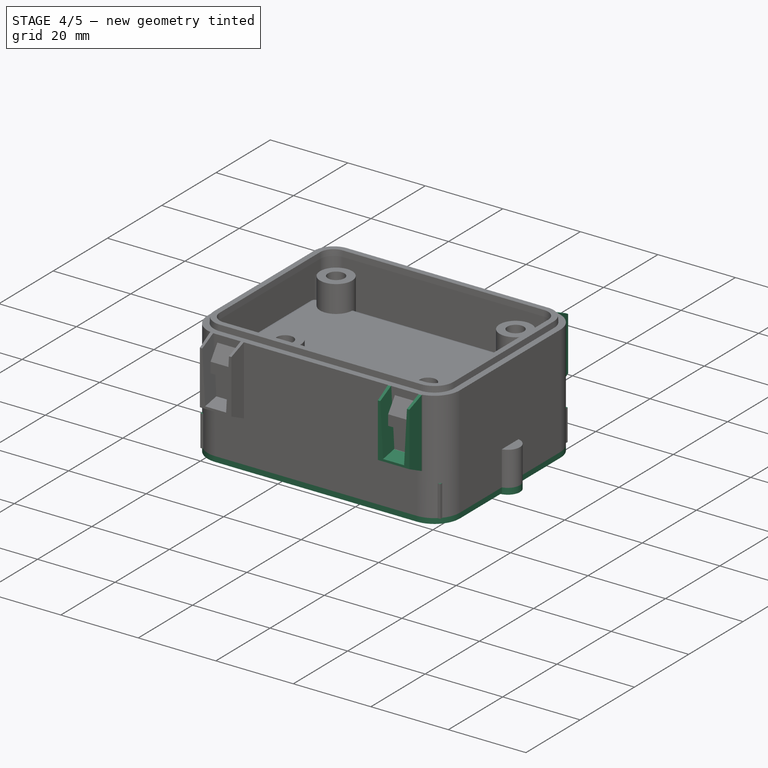
[diagram: stage 4 of 5 — iso view after this stage's code; geometry added in this stage tinted green]
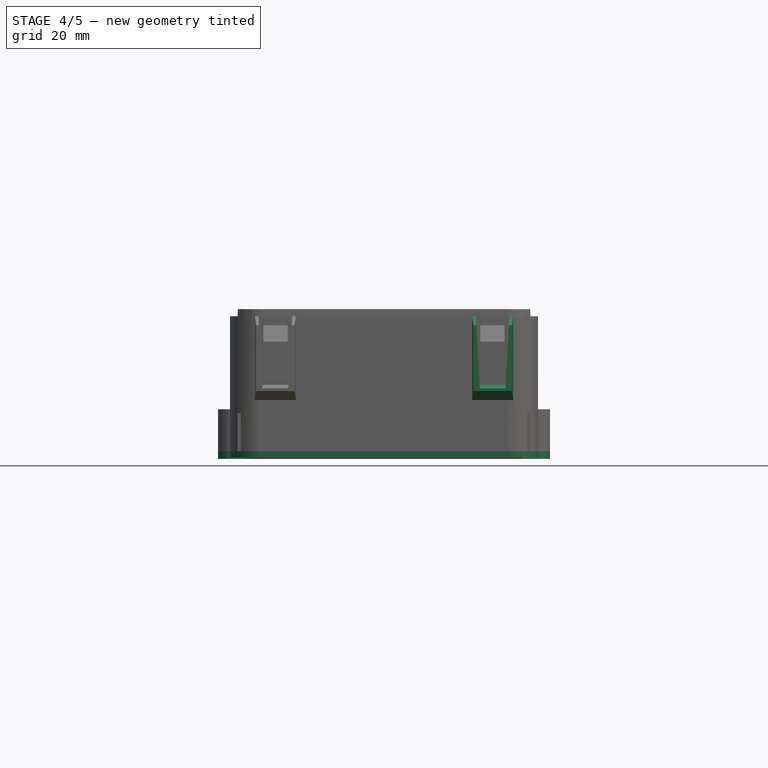
[diagram: stage 4 of 5 — front view after this stage's code; geometry added in this stage tinted green]
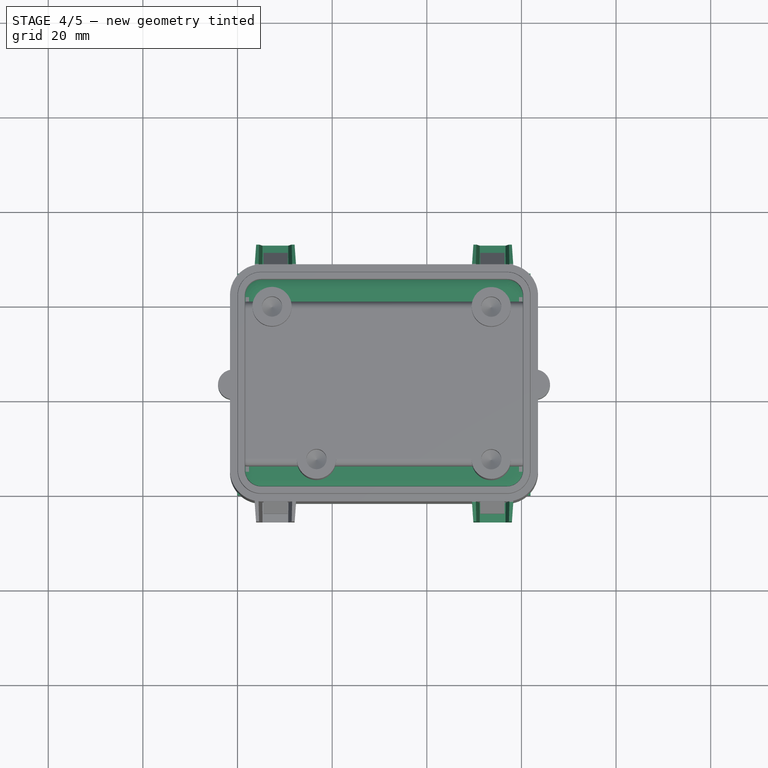
[diagram: stage 4 of 5 — top view after this stage's code; geometry added in this stage tinted green]
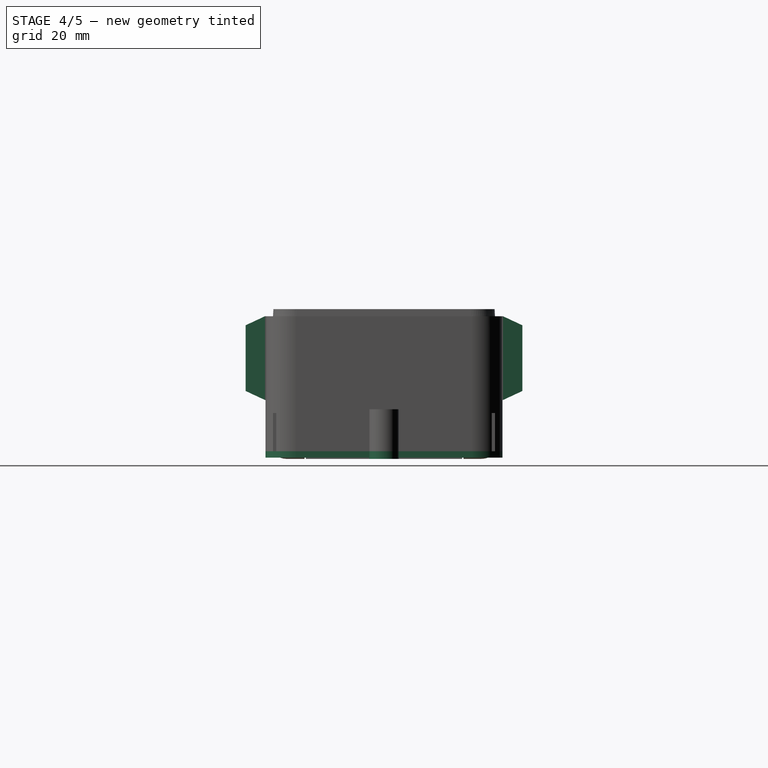
[diagram: stage 4 of 5 — right view after this stage's code; geometry added in this stage tinted green]
FEATURE [PartDesign::Body] Body006  label="batterydoorpos1"
  Group = -> [Sketch014,Pad015]
  Origin = -> Origin051
  Tip = -> Pad015
  expr: .Placement.Base.z = 0
FEATURE [Sketcher::SketchObject] Sketch015
  FullyConstrained = true
  MapMode = 5
  Support = -> [XY_Plane047]
  expr: Constraints[15] = <<dim>>.batl * (1 + <<dim>>.batc) + <<dim>>.enctsh
  expr: Constraints[16] = <<dim>>.batw * (1 + <<dim>>.batc * 2)
  expr: Constraints[26] = <<dim>>.encl / 2
  expr: Constraints[27] = <<dim>>.encw / 2
  expr: Constraints[47] = (<<dim>>.hid + <<dim>>.hit) / 2
  expr: Constraints[48] = <<dim>>.hid / 2 + <<dim>>.enctol / 2
  expr: Constraints[60] = <<dim>>.hid * 3 / 4
  sketch-geometry (24):
    g0: LineSegment StartX=1.28 StartY=6.955 StartZ=0 EndX=60.63 EndY=6.955 EndZ=0
    g1: LineSegment StartX=60.63 StartY=6.955 StartZ=0 EndX=60.63 EndY=39.955 EndZ=0
    g2: LineSegment StartX=60.63 StartY=39.955 StartZ=0 EndX=1.28 EndY=39.955 EndZ=0
    g3: LineSegment StartX=1.28 StartY=39.955 StartZ=0 EndX=1.28 EndY=6.955 EndZ=0
    g4: LineSegment StartX=30.955 StartY=23.455 StartZ=0 EndX=1.28 EndY=23.455 EndZ=0
    g5: LineSegment StartX=1.28 StartY=23.455 StartZ=0 EndX=1.28 EndY=6.955 EndZ=0
    g6: LineSegment StartX=1.28 StartY=6.955 StartZ=0 EndX=30.955 EndY=6.955 EndZ=0
    g7: LineSegment StartX=30.955 StartY=6.955 StartZ=0 EndX=30.955 EndY=23.455 EndZ=0
    g8: LineSegment StartX=0 StartY=0 StartZ=0 EndX=30.955 EndY=0 EndZ=0
    g9: LineSegment StartX=30.955 StartY=0 StartZ=0 EndX=30.955 EndY=23.455 EndZ=0
    g10: LineSegment StartX=30.955 StartY=23.455 StartZ=0 EndX=0 EndY=23.455 EndZ=0
    g11: LineSegment StartX=0 StartY=23.455 StartZ=0 EndX=0 EndY=0 EndZ=0
    g12: ArcOfCircle CenterX=-0.986 CenterY=23.455 CenterZ=0 NormalX=0 NormalY=0 NormalZ=1 AngleXU=0 Radius=3.139 StartAngle=1.5708 EndAngle=4.71239
    g13: ArcOfCircle CenterX=62.896 CenterY=23.455 CenterZ=0 NormalX=0 NormalY=0 NormalZ=1 AngleXU=0 Radius=3.139 StartAngle=4.71239 EndAngle=7.85398
    g14: LineSegment StartX=60.63 StartY=20.316 StartZ=0 EndX=62.896 EndY=20.316 EndZ=0
    g15: LineSegment StartX=-0.986006 StartY=20.316 StartZ=0 EndX=1.28 EndY=20.316 EndZ=0
    g16: LineSegment StartX=1.28 StartY=26.594 StartZ=0 EndX=-0.986 EndY=26.594 EndZ=0
    g17: LineSegment StartX=62.896 StartY=26.594 StartZ=0 EndX=60.63 EndY=26.594 EndZ=0
    g18: LineSegment StartX=1.28 StartY=26.594 StartZ=0 EndX=1.28 EndY=39.955 EndZ=0
    g19: LineSegment StartX=1.28 StartY=20.316 StartZ=0 EndX=1.28 EndY=6.955 EndZ=0
    g20: LineSegment StartX=60.63 StartY=26.594 StartZ=0 EndX=60.63 EndY=39.955 EndZ=0
    g21: LineSegment StartX=60.63 StartY=20.316 StartZ=0 EndX=60.63 EndY=6.955 EndZ=0
    g22: Circle CenterX=-0.986 CenterY=23.455 CenterZ=0 NormalX=0 NormalY=0 NormalZ=1 AngleXU=0 Radius=1.60425
    g23: Circle CenterX=62.896 CenterY=23.455 CenterZ=0 NormalX=0 NormalY=0 NormalZ=1 AngleXU=0 Radius=1.60425
  constraints (61):
    c: Coincident(g0,g1)
    c: Coincident(g1,g2)
    c: Coincident(g2,g3)
    c: Coincident(g3,g0)
    c: Horizontal(g0)
    c: Horizontal(g2)
    c: Vertical(g1)
    c: Vertical(g3)
    c: Coincident(g4,g5)
    c: Coincident(g5,g6)
    c: Coincident(g6,g7)
    c: Coincident(g7,g4)
    c: Horizontal(g4)
    c: Vertical(g7)
    c: Coincident(g5,g0)
    c: Distance(g2) = 59.35
    c: Distance(g1) = 33
    c: Coincident(g8,g9)
    c: Coincident(g9,g10)
    c: Coincident(g10,g11)
    c: Coincident(g11,g8)
    c: Horizontal(g8)
    c: Horizontal(g10)
    c: Vertical(g9)
    c: Vertical(g11)
    c: Coincident(g8,g-1)
    c: Distance(g10) = 30.955
    c: Distance(g9) = 23.455
    c: Coincident(g4,g9)
    c: Symmetric(g0,g0,g6)
    c: Symmetric(g0,g2,g4)
    c: Coincident(g12,g15) = -1.5708
    c: Coincident(g14,g13) = -1.5708
    c: Equal(g12,g13)
    c: PointOnObject(g12,g10)
    c: Horizontal(g14)
    c: Horizontal(g15)
    c: PointOnObject(g16,g3)
    c: PointOnObject(g14,g1)
    c: PointOnObject(g17,g1)
    c: Symmetric(g12,g13,g4)
    c: Horizontal(g16)
    c: Horizontal(g17)
    c: Tangent(g16,g12) = -1.5708
    c: Tangent(g13,g17) = -1.5708
    c: Symmetric(g15,g16,g4)
    c: Horizontal(g15,g14)
    c: Radius(g12) = 3.139
    c: Distance(g16) = 2.266
    c: Coincident(g18,g16)
    c: Coincident(g18,g2)
    c: Coincident(g19,g15)
    c: Coincident(g19,g0)
    c: Coincident(g20,g17)
    c: Coincident(g20,g1)
    c: Coincident(g21,g14)
    c: Coincident(g21,g0)
    c: Coincident(g22,g12)
    c: Coincident(g23,g13)
    c: Equal(g23,g22)
    c: Diameter(g22) = 3.2085
FEATURE [PartDesign::Pad] Pad016
  Direction = (0,0,1)
  Length = 1.6
  Length2 = 10
  Profile = -> Sketch015
  ReferenceAxis = -> Sketch015 [N_Axis]
  Reversed = true
  Type = 0
  expr: Length = <<dim>>.enctsh
FEATURE [PartDesign::Body] Body008  label="batterydoorpos2"
  Group = -> [Sketch016,Pad017]
  Origin = -> Origin053
  Tip = -> Pad017
  expr: .Placement.Base.z = 0
FEATURE [Sketcher::SketchObject] Sketch017
  FullyConstrained = true
  MapMode = 5
  Support = -> [XY_Plane054]
  expr: Constraints[10] = <<dim>>.encw
  expr: Constraints[9] = <<dim>>.encl
  sketch-geometry (4):
    g0: LineSegment StartX=0 StartY=0 StartZ=0 EndX=61.91 EndY=0 EndZ=0
    g1: LineSegment StartX=61.91 StartY=0 StartZ=0 EndX=61.91 EndY=46.91 EndZ=0
    g2: LineSegment StartX=61.91 StartY=46.91 StartZ=0 EndX=0 EndY=46.91 EndZ=0
    g3: LineSegment StartX=0 StartY=46.91 StartZ=0 EndX=0 EndY=0 EndZ=0
  constraints (11):
    c: Coincident(g0,g1)
    c: Coincident(g1,g2)
    c: Coincident(g2,g3)
    c: Coincident(g3,g0)
    c: Horizontal(g0)
    c: Horizontal(g2)
    c: Vertical(g1)
    c: Vertical(g3)
    c: Coincident(g0,g-1)
    c: Distance(g2) = 61.91
    c: Distance(g1) = 46.91
FEATURE [PartDesign::Pad] Pad018
  Direction = (0,0,1)
  Length = 8.1
  Length2 = 10
  Profile = -> Sketch017
  ReferenceAxis = -> Sketch017 [N_Axis]
  Type = 0
  expr: Length = <<dim>>.pcbctop + <<dim>>.spd
FEATURE [PartDesign::Fillet] Fillet003
  Base = -> Pad018 [Edge1,Edge2,Edge8,Edge5]
  BaseFeature = -> Pad018
  Radius = 5
  SupportTransform = false
  UseAllEdges = false
  expr: Radius = <<dim>>.encrin
FEATURE [PartDesign::Fillet] Fillet004
  Base = -> Fillet003 [Face5]
  BaseFeature = -> Fillet003
  Radius = 3.4
  SupportTransform = false
  UseAllEdges = false
  expr: Radius = <<dim>>.encrin - <<dim>>.enctsh
FEATURE [PartDesign::Thickness] Thickness003
  Base = -> Fillet004 [Face4]
  BaseFeature = -> Fillet004
  Intersection = false
  Join = 0
  Mode = 0
  SupportTransform = false
  Value = 1.6
  expr: Value = <<dim>>.enctsh
FEATURE [Sketcher::SketchObject] Sketch018
  FullyConstrained = true
  MapMode = 5
  Support = -> [XY_Plane054]
  expr: Constraints[10] = <<dim>>.encw
  expr: Constraints[9] = <<dim>>.encl
  sketch-geometry (4):
    g0: LineSegment StartX=0 StartY=0 StartZ=0 EndX=61.91 EndY=0 EndZ=0
    g1: LineSegment StartX=61.91 StartY=0 StartZ=0 EndX=61.91 EndY=46.91 EndZ=0
    g2: LineSegment StartX=61.91 StartY=46.91 StartZ=0 EndX=0 EndY=46.91 EndZ=0
    g3: LineSegment StartX=0 StartY=46.91 StartZ=0 EndX=0 EndY=0 EndZ=0
  constraints (11):
    c: Coincident(g0,g1)
    c: Coincident(g1,g2)
    c: Coincident(g2,g3)
    c: Coincident(g3,g0)
    c: Horizontal(g0)
    c: Horizontal(g2)
    c: Vertical(g1)
    c: Vertical(g3)
    c: Coincident(g0,g-1)
    c: Distance(g2) = 61.91
    c: Distance(g1) = 46.91
FEATURE [PartDesign::Pad] Pad019
  Direction = (0,0,1)
  Length = 1.35
  Length2 = 10
  Profile = -> Sketch018
  ReferenceAxis = -> Sketch018 [N_Axis]
  Type = 0
  expr: Length = <<dim>>.elh - <<dim>>.elc
FEATURE [PartDesign::Fillet] Fillet005
  Base = -> Pad019 [Edge1,Edge2,Edge8,Edge5]
  BaseFeature = -> Pad019
  Radius = 5
  SupportTransform = false
  UseAllEdges = false
  expr: Radius = <<dim>>.encrin
FEATURE [PartDesign::Thickness] Thickness004
  Base = -> Fillet005 [Face2,Face5]
  BaseFeature = -> Fillet005
  Intersection = false
  Join = 0
  Mode = 0
  Reversed = true
  SupportTransform = false
  Value = 2
  expr: Value = <<dim>>.pcbctop
FEATURE [PartDesign::Body] Body010
  Group = -> [Sketch018,Pad019,Fillet005,Thickness004]
  Origin = -> Origin056
  Tip = -> Thickness004
FEATURE [PartDesign::Pad] Pad020
  BaseFeature = -> Thickness003
  Direction = (0,0,-1)
  Length = 1.35
  Length2 = 10
  Profile = -> Thickness003 [Face18]
  Type = 0
  expr: Length = <<dim>>.elh - <<dim>>.elc
  expr: TaperAngle = <<dim>>.elt - <<dim>>.elt
FEATURE [Sketcher::SketchObject] Sketch019
  FullyConstrained = true
  MapMode = 5
  Support = -> [XY_Plane054]
  expr: Constraints[10] = <<dim>>.encw
  expr: Constraints[9] = <<dim>>.encl
  sketch-geometry (4):
    g0: LineSegment StartX=0 StartY=0 StartZ=0 EndX=61.91 EndY=0 EndZ=0
    g1: LineSegment StartX=61.91 StartY=0 StartZ=0 EndX=61.91 EndY=46.91 EndZ=0
    g2: LineSegment StartX=61.91 StartY=46.91 StartZ=0 EndX=0 EndY=46.91 EndZ=0
    g3: LineSegment StartX=0 StartY=46.91 StartZ=0 EndX=0 EndY=0 EndZ=0
  constraints (11):
    c: Coincident(g0,g1)
    c: Coincident(g1,g2)
    c: Coincident(g2,g3)
    c: Coincident(g3,g0)
    c: Horizontal(g0)
    c: Horizontal(g2)
    c: Vertical(g1)
    c: Vertical(g3)
    c: Coincident(g0,g-1)
    c: Distance(g2) = 61.91
    c: Distance(g1) = 46.91
FEATURE [PartDesign::Pad] Pad021
  Direction = (0,0,1)
  Length = 8.1
  Length2 = 10
  Profile = -> Sketch019
  ReferenceAxis = -> Sketch019 [N_Axis]
  Type = 0
  expr: Length = <<dim>>.pcbctop + <<dim>>.spd
FEATURE [PartDesign::Body] Body011
  Group = -> [Sketch019,Pad021,Fillet006,Thickness005,Pad022,Pocket002]
  Origin = -> Origin057
  Tip = -> Pocket002
FEATURE [PartDesign::Boolean] Boolean005
  BaseFeature = -> Pad020
  Group = -> [Body010]
  Type = 0
FEATURE [PartDesign::Mirrored] Mirrored004
  MirrorPlane = -> DatumPlane004
FEATURE [PartDesign::Mirrored] Mirrored005
  MirrorPlane = -> DatumPlane003
FEATURE [PartDesign::MultiTransform] MultiTransform002
  BaseFeature = -> Chamfer002
  Originals = -> [Pad026,Chamfer,Chamfer001,Chamfer002]
  Transformations = -> [Mirrored004,Mirrored005]
FEATURE [PartDesign::Body] Body001
  Group = -> [Sketch,Pad001,Fillet,Fillet007,Thickness,Boolean,Boolean001,Boolean002,Boolean003,Boolean004,Fillet002,ShapeBinder002,ShapeBinder003,Hole,Hole001,Boolean007,DatumPlane002,Sketch022,Pad024,DatumPlane003,DatumPlane004,MultiTransform,Mirrored,Mirrored001,DatumPlane006,Sketch028,Pad026,Chamfer,Chamfer001,Chamfer002,MultiTransform002,Mirrored004,Mirrored005]
  Origin = -> Origin039
  Tip = -> MultiTransform002
FEATURE [App::Part] Part  label="enclosure"
  Group = -> [Body001,LCS_enc,LCS_enc_pcb]
  Origin = -> Origin038
FEATURE [App::DocumentObjectGroup] Parts
  Group = -> [Elephant0_9_2_1,Part,Part001,Part002]
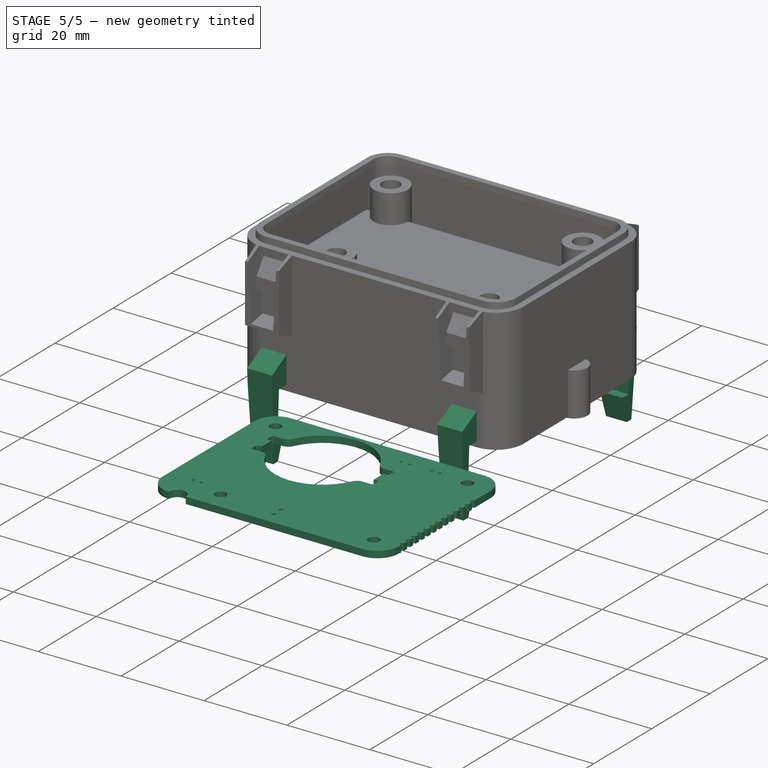
[diagram: stage 5 of 5 — iso view after this stage's code; geometry added in this stage tinted green]
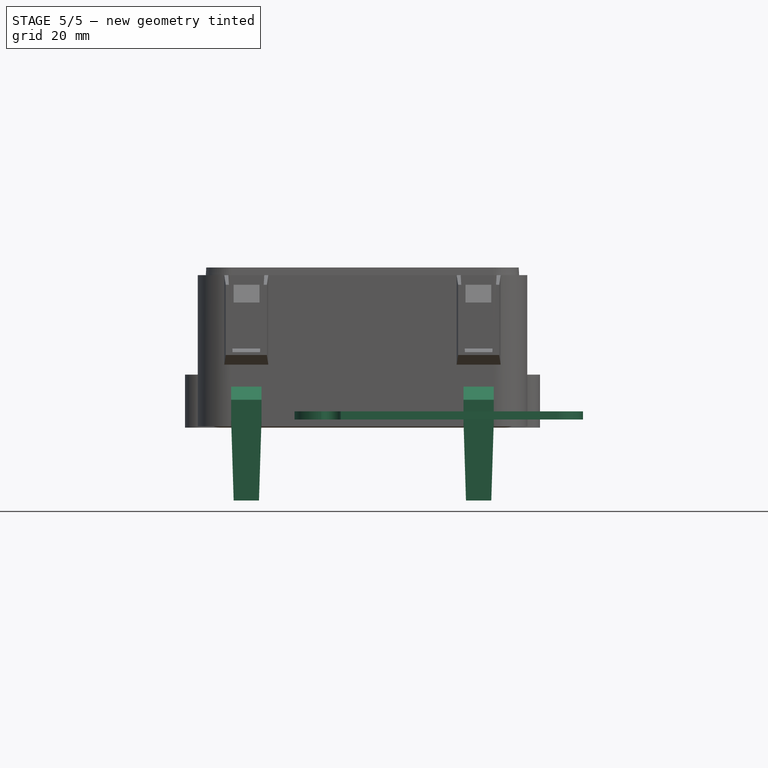
[diagram: stage 5 of 5 — front view after this stage's code; geometry added in this stage tinted green]
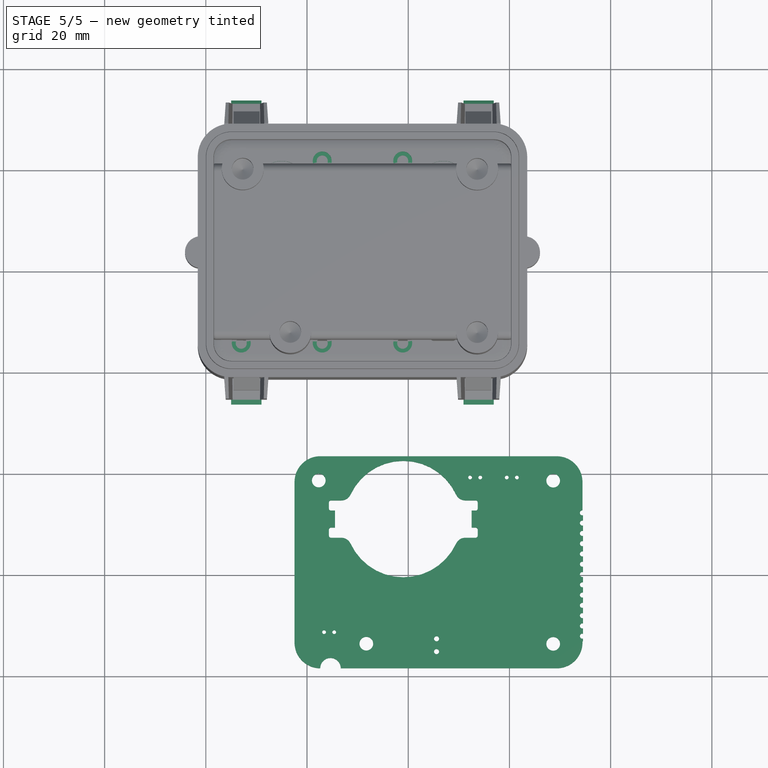
[diagram: stage 5 of 5 — top view after this stage's code; geometry added in this stage tinted green]
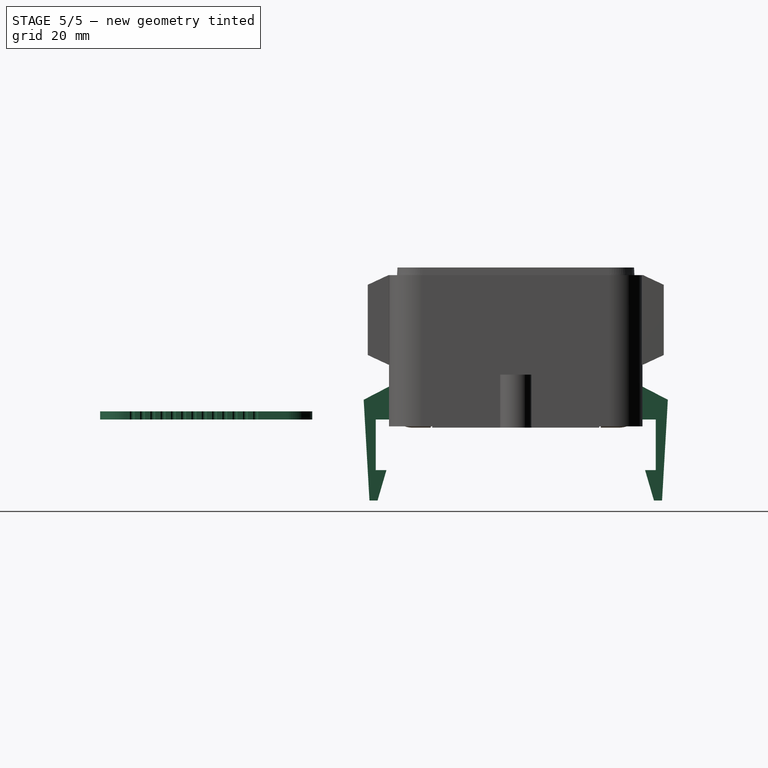
[diagram: stage 5 of 5 — right view after this stage's code; geometry added in this stage tinted green]
FEATURE [Part::Feature] Part__Feature  label="C_0201_0603Metric"
  shape: bbox 0.6 x 0.3 x 0.3 mm, 28 faces (baked)
FEATURE [App::Part] C_0201_0603Metric  label="C_0201_0603Metric001"
  Group = -> [Part__Feature]
  Origin = -> Origin001
  Placement = pos=(65.545,-31.242,1.65) rot=(0,0,1;0rad)
FEATURE [Part::Feature] Part__Feature001  label="C_0201_0603Metric002"
  shape: bbox 0.6 x 0.3 x 0.3 mm, 28 faces (baked)
FEATURE [App::Part] C_0201_0603Metric001  label="C_0201_0603Metric003"
  Group = -> [Part__Feature001]
  Origin = -> Origin002
  Placement = pos=(52.21,-40.513,1.65) rot=(0,0,1;0rad)
FEATURE [Part::Feature] Part__Feature002  label="C_0201_0603Metric004"
  shape: bbox 0.6 x 0.3 x 0.3 mm, 28 faces (baked)
FEATURE [App::Part] C_0201_0603Metric002  label="C_0201_0603Metric005"
  Group = -> [Part__Feature002]
  Origin = -> Origin003
  Placement = pos=(52.21,-37.719,1.65) rot=(0,0,1;0rad)
FEATURE [Part::Feature] Part__Feature003  label="QFN-20-1EP_4x4mm_Pitch0.5mm"
  shape: bbox 4 x 4 x 0.77 mm, 134 faces (baked)
FEATURE [App::Part] QFN_20_1EP_4x4mm_P0_5mm_EP2_5x2_5mm  label="QFN-20-1EP_4x4mm_P0.5mm_EP2.5x2.5mm"
  Group = -> [Part__Feature003]
  Origin = -> Origin004
  Placement = pos=(62.5165,-35.417,1.65) rot=(0,0,1;0rad)
FEATURE [Part::Feature] Part__Feature004  label="L_0402_1005Metric"
  shape: bbox 1 x 0.5 x 0.5 mm, 28 faces (baked)
FEATURE [App::Part] L_0402_1005Metric  label="L_0402_1005Metric001"
  Group = -> [Part__Feature004]
  Origin = -> Origin005
  Placement = pos=(61.999,-27.94,1.65) rot=(0,0,1;0rad)
FEATURE [Part::Feature] Part__Feature005  label="C_0603_1608Metric"
  shape: bbox 1.6 x 0.8 x 0.8 mm, 28 faces (baked)
FEATURE [App::Part] C_0603_1608Metric  label="C_0603_1608Metric001"
  Group = -> [Part__Feature005]
  Origin = -> Origin006
  Placement = pos=(38.8259,-45.8109,1.65) rot=(0,0,1;0rad)
FEATURE [Part::Feature] Part__Feature006  label="L_0402_1005Metric002"
  shape: bbox 1 x 0.5 x 0.5 mm, 28 faces (baked)
FEATURE [App::Part] L_0402_1005Metric001  label="L_0402_1005Metric003"
  Group = -> [Part__Feature006]
  Origin = -> Origin007
  Placement = pos=(68.684,-26.035,1.65) rot=(0,0,1;0rad)
FEATURE [Part::Feature] Part__Feature007  label="C_0603_1608Metric002"
  shape: bbox 1.6 x 0.8 x 0.8 mm, 28 faces (baked)
FEATURE [App::Part] C_0603_1608Metric001  label="C_0603_1608Metric003"
  Group = -> [Part__Feature007]
  Origin = -> Origin008
  Placement = pos=(29.858,-48.502,1.65) rot=(0,0,1;0rad)
FEATURE [Part::Feature] Part__Feature008  label="C_0201_0603Metric006"
  shape: bbox 0.6 x 0.3 x 0.3 mm, 28 faces (baked)
FEATURE [App::Part] C_0201_0603Metric003  label="C_0201_0603Metric007"
  Group = -> [Part__Feature008]
  Origin = -> Origin009
  Placement = pos=(42.1409,-45.6539,1.65) rot=(0,0,1;0rad)
FEATURE [Part::Feature] Part__Feature009  label="PinHeader_1x02_P254mm_Vertical"
  shape: bbox 2.54 x 5.08 x 11.54 mm, 52 faces (baked)
FEATURE [App::Part] PinHeader_1x02_P2_54mm_Vertical  label="PinHeader_1x02_P2.54mm_Vertical"
  Group = -> [Part__Feature009]
  Origin = -> Origin010
  Placement = pos=(45.593,-55.372,1.65) rot=(0,0,1;3.14159rad)
FEATURE [Part::Feature] Part__Feature010  label="R_0603_1608Metric"
  shape: bbox 1.6 x 0.8 x 0.45 mm, 26 faces (baked)
FEATURE [App::Part] R_0603_1608Metric  label="R_0603_1608Metric001"
  Group = -> [Part__Feature010]
  Origin = -> Origin011
  Placement = pos=(42.1409,-52.5419,1.65) rot=(0,0,1;0rad)
FEATURE [Part::Feature] Part__Feature011  label="C_0603_1608Metric004"
  shape: bbox 1.6 x 0.8 x 0.8 mm, 28 faces (baked)
FEATURE [App::Part] C_0603_1608Metric002  label="C_0603_1608Metric005"
  Group = -> [Part__Feature011]
  Origin = -> Origin012
  Placement = pos=(38.494,-42.914,1.65) rot=(0,0,1;0rad)
FEATURE [Part::Feature] Part__Feature012  label="TSSOP_8_44x3mm_P065mm"
  shape: bbox 6.4 x 3 x 1.1 mm, 156 faces (baked)
FEATURE [App::Part] TSSOP_8_4_4x3mm_P0_65mm  label="TSSOP-8_4.4x3mm_P0.65mm"
  Group = -> [Part__Feature012]
  Origin = -> Origin013
  Placement = pos=(61.4172,-54.61,1.65) rot=(0,0,1;0rad)
FEATURE [Part::Feature] Part__Feature013  label="C_0201_0603Metric008"
  shape: bbox 0.6 x 0.3 x 0.3 mm, 28 faces (baked)
FEATURE [App::Part] C_0201_0603Metric004  label="C_0201_0603Metric009"
  Group = -> [Part__Feature013]
  Origin = -> Origin014
  Placement = pos=(38.494,-50.165,1.65) rot=(0,0,1;0rad)
FEATURE [Part::Feature] Part__Feature014  label="Crystal_SMD_3225-4Pin_3.2x2.5mm"
  shape: bbox 3.2 x 2.501 x 0.64 mm, 28 faces (baked)
FEATURE [App::Part] Crystal_SMD_3225_4Pin_3_2x2_5mm  label="Crystal_SMD_3225-4Pin_3.2x2.5mm001"
  Group = -> [Part__Feature014]
  Origin = -> Origin015
  Placement = pos=(45.3909,-44.2029,1.65) rot=(0,0,-1;1.5708rad)
FEATURE [Part::Feature] Part__Feature015  label="QFN_48_1EP_7x7mm_P05mm_EP56x56mm"
  shape: bbox 7 x 7 x 1.1 mm, 302 faces (baked)
FEATURE [App::Part] QFN_48_1EP_7x7mm_P0_5mm_EP5_6x5_6mm  label="QFN-48-1EP_7x7mm_P0.5mm_EP5.6x5.6mm"
  Group = -> [Part__Feature015]
  Origin = -> Origin016
  Placement = pos=(59.9,-44.8395,1.65) rot=(0,0,1;0rad)
FEATURE [Part::Feature] Part__Feature016  label="C_0201_0603Metric010"
  shape: bbox 0.6 x 0.3 x 0.3 mm, 28 faces (baked)
FEATURE [App::Part] C_0201_0603Metric005  label="C_0201_0603Metric011"
  Group = -> [Part__Feature016]
  Origin = -> Origin017
  Placement = pos=(58.788,-26.162,1.65) rot=(0,0,1;0rad)
FEATURE [Part::Feature] Part__Feature017  label="C_0201_0603Metric012"
  shape: bbox 0.6 x 0.3 x 0.3 mm, 28 faces (baked)
FEATURE [App::Part] C_0201_0603Metric006  label="C_0201_0603Metric013"
  Group = -> [Part__Feature017]
  Origin = -> Origin018
  Placement = pos=(65.545,-26.162,1.65) rot=(0,0,1;0rad)
FEATURE [Part::Feature] Part__Feature018  label="C_0201_0603Metric014"
  shape: bbox 0.6 x 0.3 x 0.3 mm, 28 faces (baked)
FEATURE [App::Part] C_0201_0603Metric007  label="C_0201_0603Metric015"
  Group = -> [Part__Feature018]
  Origin = -> Origin019
  Placement = pos=(57.671,-32.385,1.65) rot=(0,0,1;0rad)
FEATURE [Part::Feature] Part__Feature020  label="C_0201_0603Metric016"
  shape: bbox 0.6 x 0.3 x 0.3 mm, 28 faces (baked)
FEATURE [App::Part] C_0201_0603Metric008  label="C_0201_0603Metric017"
  Group = -> [Part__Feature020]
  Origin = -> Origin021
  Placement = pos=(42.1409,-42.8899,1.65) rot=(0,0,1;0rad)
FEATURE [Part::Feature] Part__Feature021  label="LED_0603_1608Metric"
  shape: bbox 1.6 x 0.8 x 1.1 mm, 50 faces (baked)
FEATURE [App::Part] LED_0603_1608Metric  label="LED_0603_1608Metric001"
  Group = -> [Part__Feature021]
  Origin = -> Origin022
  Placement = pos=(42.1809,-55.5899,1.65) rot=(0,0,1;0rad)
FEATURE [Part::Feature] Part__Feature022  label="R_0603_1608Metric002"
  shape: bbox 1.6 x 0.8 x 0.45 mm, 26 faces (baked)
FEATURE [App::Part] R_0603_1608Metric001  label="R_0603_1608Metric003"
  Group = -> [Part__Feature022]
  Origin = -> Origin023
  Placement = pos=(37.8729,-54.5739,1.65) rot=(0,0,1;0rad)
FEATURE [Part::Feature] Part__Feature024  label="R_0603_1608Metric004"
  shape: bbox 1.6 x 0.8 x 0.45 mm, 26 faces (baked)
FEATURE [App::Part] R_0603_1608Metric002  label="R_0603_1608Metric005"
  Group = -> [Part__Feature024]
  Origin = -> Origin025
  Placement = pos=(42.1268,-48.561,1.65) rot=(0,0,1;0rad)
FEATURE [Part::Feature] Part__Feature025  label="C_0603_1608Metric006"
  shape: bbox 1.6 x 0.8 x 0.8 mm, 28 faces (baked)
FEATURE [App::Part] C_0603_1608Metric003  label="C_0603_1608Metric007"
  Group = -> [Part__Feature025]
  Origin = -> Origin026
  Placement = pos=(69.736,-32.258,1.65) rot=(0,0,1;0rad)
FEATURE [Part::Feature] Part__Feature027  label="R_0603_1608Metric006"
  shape: bbox 1.6 x 0.8 x 0.45 mm, 26 faces (baked)
FEATURE [App::Part] R_0603_1608Metric003  label="R_0603_1608Metric007"
  Group = -> [Part__Feature027]
  Origin = -> Origin028
  Placement = pos=(36.0959,-52.2879,1.65) rot=(0,0,1;0rad)
FEATURE [Part::Feature] Part__Feature028  label="C_0201_0603Metric018"
  shape: bbox 0.6 x 0.3 x 0.3 mm, 28 faces (baked)
FEATURE [App::Part] C_0201_0603Metric009  label="C_0201_0603Metric019"
  Group = -> [Part__Feature028]
  Origin = -> Origin029
  Placement = pos=(65.545,-28.321,1.65) rot=(0,0,1;0rad)
FEATURE [Part::Feature] Part__Feature030  label="C_0201_0603Metric020"
  shape: bbox 0.6 x 0.3 x 0.3 mm, 28 faces (baked)
FEATURE [App::Part] C_0201_0603Metric010  label="C_0201_0603Metric021"
  Group = -> [Part__Feature030]
  Origin = -> Origin031
  Placement = pos=(58.788,-28.194,1.65) rot=(0,0,1;0rad)
FEATURE [Part::Feature] Part__Feature031  label="L_0402_1005Metric004"
  shape: bbox 1 x 0.5 x 0.5 mm, 28 faces (baked)
FEATURE [App::Part] L_0402_1005Metric002  label="L_0402_1005Metric005"
  Group = -> [Part__Feature031]
  Origin = -> Origin032
  Placement = pos=(68.684,-28.025,1.65) rot=(0,0,1;0rad)
FEATURE [Part::Feature] Part__Feature033  label="C_0603_1608Metric008"
  shape: bbox 1.6 x 0.8 x 0.8 mm, 28 faces (baked)
FEATURE [App::Part] C_0603_1608Metric004  label="C_0603_1608Metric009"
  Group = -> [Part__Feature033]
  Origin = -> Origin034
  Placement = pos=(31.115,-44.577,1.65) rot=(0,0,1;0rad)
FEATURE [Part::Feature] Part__Feature034  label="L_0402_1005Metric006"
  shape: bbox 1 x 0.5 x 0.5 mm, 28 faces (baked)
FEATURE [App::Part] L_0402_1005Metric003  label="L_0402_1005Metric007"
  Group = -> [Part__Feature034]
  Origin = -> Origin035
  Placement = pos=(61.999,-25.95,1.65) rot=(0,0,1;0rad)
FEATURE [Part::Feature] Part__Feature035  label="Elephant0.9.2 PCB"
  shape: bbox 64.52 x 41.91 x 1.6 mm, 264 faces (baked)
FEATURE [PartDesign::CoordinateSystem] LCS_Origin
  AttacherType = Attacher::AttachEngine3D
  MapMode = 2
  Support = -> [X_Axis037]
FEATURE [App::DocumentObjectGroup] Constraints
FEATURE [App::FeaturePython] Variables  # WARN: FeaturePython — macro-defined, semantics opaque (R4)
  Type = App::PropertyContainer
FEATURE [App::DocumentObjectGroup] Configurations
FEATURE [Spreadsheet::Sheet] Spreadsheet  label="dim"
  cells = B1='Length; C1='Width; D1='Depth; E1='Clearance; F1='Diameter; G1='Delta-X; H1='Delta-Y; I1='Delta-Z; J1='Thickness; K1='Coeff; L1='Taper; M1='Tolerance; A2='PCB; B2(pcbl)==56.91 mm; C2(pcbw)==41.91 mm; D2(pcbh)==1.6 mm; E2(pcbctop)==2 mm; A3='PCB Screw Holes; F3(pcbD)==2.7 mm; A4=1; G4(pcbh1x)==4.789 mm; H4(pcbh1y)==37.12 mm; I4(pcbh1z)==0 mm; A5=2; G5(pcbh2x)==51.118 mm; H5(pcbh2y)==37.084 mm; I5(pcbh2z)==0 mm; A6=3; G6(pcbh3x)==51.118 mm; H6(pcbh3y)==4.826 mm; I6(pcbh3z)==0 mm; A7=4; G7(pcbh4x)==14.187 mm; H7(pcbh4y)==4.862 mm; I7(pcbh4z)==0 mm; A8='Enclosure; B8(encl)==pcbl + encrin; C8(encw)==pcbw + encrin; D8(ench)==pcbh + (1 + batc) * bath + hil * hif + enctsh; E8(encrin)==5 mm; J8(enctsh)==1.6 mm; M8(enctol)==0.254 mm; A9='Speaker; B9(spl)==40 mm; C9(spw)==20 mm; D9(spd)==6.1 mm; A10='Speaker Screw Holes; B10(sshl)==36 mm; C10(sshw)==16 mm; A11=1; A12=2; A13='Battery; B13(batl)==55 mm; C13(batw)==30 mm; D13(bath)==17.5 mm; E13(batc)=0.05; A14='Heated Insert; B14(hil)==5.8 mm; E14(hiti)=0.07; F14(hid)==4.6 mm * (1 - hiti); J14(hit)==2 mm; K14(hif)=1.2; A15='Enclosure Interface; D15(eid)==3 mm; A16='Enclosure Lip; D16(elh)==1.5 mm; E16(elc)==0.15 mm; L16(elt)=-3
FEATURE [PartDesign::ShapeBinder] ShapeBinder
  Support = -> [Part__Feature035]
  TraceSupport = false
FEATURE [PartDesign::Pad] Pad
  Direction = (1,0,0)
  Length = 7.5
  Length2 = 10
  Profile = -> ShapeBinder
  Reversed = true
  Type = 0
FEATURE [PartDesign::Body] Body
  Group = -> [ShapeBinder,Pad]
  Origin = -> Origin
  Tip = -> Pad
FEATURE [Part::Cut] Cut
  Base = -> Part__Feature035
  Tool = -> Body
FEATURE [PartDesign::Fillet] Fillet006
  Base = -> Pad021 [Edge1,Edge2,Edge8,Edge5]
  BaseFeature = -> Pad021
  Radius = 5
  SupportTransform = false
  UseAllEdges = false
  expr: Radius = <<dim>>.encrin
FEATURE [PartDesign::Thickness] Thickness005
  Base = -> Fillet006 [Face2,Face5]
  BaseFeature = -> Fillet006
  Intersection = false
  Join = 0
  Mode = 0
  SupportTransform = false
  Value = 0.15
  expr: Value = <<dim>>.elc
FEATURE [PartDesign::Pad] Pad022
  BaseFeature = -> Thickness005
  Direction = (0,0,-1)
  Length = 1.35
  Length2 = 10
  Profile = -> Thickness005 [Face9]
  TaperAngle = 3
  Type = 0
  expr: Length = <<dim>>.elh - <<dim>>.elc
  expr: TaperAngle = -<<dim>>.elt
FEATURE [PartDesign::Pocket] Pocket002
  BaseFeature = -> Pad022
  Direction = (0,0,-1)
  Length = 8.1
  Length2 = 5
  Profile = -> Pad022 [Face5]
  Type = 0
  expr: Length = <<dim>>.pcbctop + <<dim>>.spd
FEATURE [PartDesign::Boolean] Boolean006
  BaseFeature = -> Boolean005
  Group = -> [Body011]
  Type = 1
FEATURE [PartDesign::Plane] DatumPlane001
  AttachmentOffset = pos=(0,0,9.7) rot=(0,0,1;0rad)
  Length = 60
  MapMode = 5
  Placement = pos=(0,0,9.7) rot=(0,0,1;0rad)
  ResizeMode = 0
  Support = -> [XY_Plane054]
  Width = 60
  expr: .AttachmentOffset.Base.z = <<dim>>.pcbctop + <<dim>>.spd + <<dim>>.enctsh
FEATURE [Sketcher::SketchObject] Sketch020
  FullyConstrained = true
  MapMode = 5
  Placement = pos=(0,0,9.7) rot=(0,0,1;0rad)
  Support = -> [DatumPlane001]
  expr: Constraints[10] = <<dim>>.encw - 2 * (<<dim>>.encrin - <<dim>>.enctsh)
  expr: Constraints[11] = <<dim>>.encl - 2 * (<<dim>>.encrin - <<dim>>.enctsh)
  expr: Constraints[25] = <<dim>>.spw
  expr: Constraints[26] = <<dim>>.spl
  expr: Constraints[27] = <<dim>>.enctsh
  expr: Constraints[40] = <<dim>>.sshl
  expr: Constraints[41] = <<dim>>.sshw
  expr: Constraints[8] = <<dim>>.encrin - <<dim>>.enctsh
  expr: Constraints[9] = <<dim>>.encrin - <<dim>>.enctsh
  sketch-geometry (55):
    g0: LineSegment StartX=3.4 StartY=3.4 StartZ=0 EndX=58.51 EndY=3.4 EndZ=0
    g1: LineSegment StartX=58.51 StartY=3.4 StartZ=0 EndX=58.51 EndY=43.51 EndZ=0
    g2: LineSegment StartX=58.51 StartY=43.51 StartZ=0 EndX=3.4 EndY=43.51 EndZ=0
    g3: LineSegment StartX=3.4 StartY=43.51 StartZ=0 EndX=3.4 EndY=3.4 EndZ=0
    g4: LineSegment StartX=3.4 StartY=23.455 StartZ=0 EndX=58.51 EndY=23.455 EndZ=0
    g5: LineSegment StartX=4.99905 StartY=3.455 StartZ=0 EndX=24.9991 EndY=3.455 EndZ=0
    g6: LineSegment StartX=24.9991 StartY=3.455 StartZ=0 EndX=24.9991 EndY=43.455 EndZ=0
    g7: LineSegment StartX=24.9991 StartY=43.455 StartZ=0 EndX=4.99905 EndY=43.455 EndZ=0
    g8: LineSegment StartX=4.99905 StartY=43.455 StartZ=0 EndX=4.99905 EndY=3.455 EndZ=0
    g9: GeomPoint X=24.9991 Y=23.455 Z=0
    g10: LineSegment StartX=6.99905 StartY=5.455 StartZ=0 EndX=22.9991 EndY=5.455 EndZ=0
    g11: LineSegment StartX=22.9991 StartY=5.455 StartZ=0 EndX=22.9991 EndY=41.455 EndZ=0
    g12: LineSegment StartX=22.9991 StartY=41.455 StartZ=0 EndX=6.99905 EndY=41.455 EndZ=0
    g13: LineSegment StartX=6.99905 StartY=41.455 StartZ=0 EndX=6.99905 EndY=5.455 EndZ=0
    g14: GeomPoint X=22.9991 Y=23.455 Z=0
    g15: GeomPoint X=14.9991 Y=23.455 Z=0
    g16: GeomPoint X=14.9991 Y=23.455 Z=0
    g17: ArcOfCircle CenterX=14.9991 CenterY=33.455 CenterZ=0 NormalX=0 NormalY=0 NormalZ=1 AngleXU=0 Radius=8 StartAngle=4e-16 EndAngle=3.14159
    g18: ArcOfCircle CenterX=14.9991 CenterY=13.455 CenterZ=0 NormalX=0 NormalY=0 NormalZ=1 AngleXU=0 Radius=8 StartAngle=3.14159 EndAngle=6.28319
    g19: LineSegment StartX=6.99905 StartY=33.455 StartZ=0 EndX=6.99905 EndY=13.455 EndZ=0
    g20: LineSegment StartX=22.9991 StartY=13.455 StartZ=0 EndX=22.9991 EndY=33.455 EndZ=0
    g21: Circle CenterX=6.99905 CenterY=41.455 CenterZ=0 NormalX=0 NormalY=0 NormalZ=1 AngleXU=0 Radius=1.1
    g22: Circle CenterX=22.9991 CenterY=41.455 CenterZ=0 NormalX=0 NormalY=0 NormalZ=1 AngleXU=0 Radius=1.1
    g23: Circle CenterX=6.99905 CenterY=5.455 CenterZ=0 NormalX=0 NormalY=0 NormalZ=1 AngleXU=0 Radius=1.1
    g24: Circle CenterX=22.9991 CenterY=5.455 CenterZ=0 NormalX=0 NormalY=0 NormalZ=1 AngleXU=0 Radius=1.1
    g25: LineSegment StartX=30.955 StartY=3.4 StartZ=0 EndX=30.955 EndY=43.51 EndZ=0
    g26: Circle CenterX=19.3491 CenterY=27.805 CenterZ=0 NormalX=0 NormalY=0 NormalZ=1 AngleXU=0 Radius=3.65
    g27: Circle CenterX=19.3491 CenterY=19.105 CenterZ=0 NormalX=0 NormalY=0 NormalZ=1 AngleXU=0 Radius=3.65
    g28: Circle CenterX=10.6491 CenterY=19.105 CenterZ=0 NormalX=0 NormalY=0 NormalZ=1 AngleXU=0 Radius=3.65
    g29: Circle CenterX=10.6491 CenterY=27.805 CenterZ=0 NormalX=0 NormalY=0 NormalZ=1 AngleXU=0 Radius=3.65
    g30: Circle CenterX=14.9991 CenterY=36.6491 CenterZ=0 NormalX=0 NormalY=0 NormalZ=1 AngleXU=0 Radius=4.80595
    g31: Circle CenterX=14.9991 CenterY=10.2609 CenterZ=0 NormalX=0 NormalY=0 NormalZ=1 AngleXU=0 Radius=4.80595
    g32: LineSegment StartX=12.26 StartY=15.8297 StartZ=0 EndX=12.8779 EndY=14.5735 EndZ=0
    g33: LineSegment StartX=10.6491 StartY=22.755 StartZ=0 EndX=10.6491 EndY=24.155 EndZ=0
    g34: LineSegment StartX=14.2991 StartY=19.105 StartZ=0 EndX=15.6991 EndY=19.105 EndZ=0
    g35: Circle CenterX=14.9991 CenterY=23.455 CenterZ=0 NormalX=0 NormalY=0 NormalZ=1 AngleXU=0 Radius=1.10183
    g36: LineSegment StartX=14.2199 StartY=24.2341 StartZ=0 EndX=13.23 EndY=25.2241 EndZ=0
    g37: Circle CenterX=46.9109 CenterY=36.6491 CenterZ=0 NormalX=0 NormalY=0 NormalZ=1 AngleXU=0 Radius=4.80595
    g38: Circle CenterX=46.9109 CenterY=10.2609 CenterZ=0 NormalX=0 NormalY=0 NormalZ=1 AngleXU=0 Radius=4.80595
    g39: GeomPoint X=30.955 Y=36.6491 Z=0
    g40: GeomPoint X=30.955 Y=27.805 Z=0
    g41: GeomPoint X=30.955 Y=19.105 Z=0
    g42: GeomPoint X=30.955 Y=10.2609 Z=0
    g43: GeomPoint X=30.955 Y=5.455 Z=0
    g44: GeomPoint X=30.955 Y=41.455 Z=0
    g45: Circle CenterX=42.5609 CenterY=27.805 CenterZ=0 NormalX=0 NormalY=0 NormalZ=1 AngleXU=0 Radius=3.65
    g46: Circle CenterX=51.2609 CenterY=27.805 CenterZ=0 NormalX=0 NormalY=0 NormalZ=1 AngleXU=0 Radius=3.65
    g47: Circle CenterX=42.5609 CenterY=19.105 CenterZ=0 NormalX=0 NormalY=0 NormalZ=1 AngleXU=0 Radius=3.65
    g48: Circle CenterX=51.2609 CenterY=19.105 CenterZ=0 NormalX=0 NormalY=0 NormalZ=1 AngleXU=0 Radius=3.65
    g49: Circle CenterX=38.9109 CenterY=41.455 CenterZ=0 NormalX=0 NormalY=0 NormalZ=1 AngleXU=0 Radius=1.1
    g50: Circle CenterX=54.9109 CenterY=41.455 CenterZ=0 NormalX=0 NormalY=0 NormalZ=1 AngleXU=0 Radius=1.1
    g51: Circle CenterX=38.9109 CenterY=5.455 CenterZ=0 NormalX=0 NormalY=0 NormalZ=1 AngleXU=0 Radius=1.1
    g52: Circle CenterX=54.9109 CenterY=5.455 CenterZ=0 NormalX=0 NormalY=0 NormalZ=1 AngleXU=0 Radius=1.1
    g53: Circle CenterX=46.9109 CenterY=23.455 CenterZ=0 NormalX=0 NormalY=0 NormalZ=1 AngleXU=0 Radius=1.10183
    g54: GeomPoint X=30.955 Y=23.455 Z=0
  constraints (131):
    c: Coincident(g0,g1)
    c: Coincident(g1,g2)
    c: Coincident(g2,g3)
    c: Coincident(g3,g0)
    c: Horizontal(g0)
    c: Horizontal(g2)
    c: Vertical(g1)
    c: Vertical(g3)
    c: DistanceX(g-1,g0) = 3.4
    c: DistanceY(g-1,g0) = 3.4
    c: DistanceY(g3,g3) = 40.11
    c: DistanceX(g0,g0) = 55.11
    c: PointOnObject(g4,g1)
    c: Horizontal(g4)
    c: Symmetric(g0,g2,g4)
    c: Coincident(g5,g6)
    c: Coincident(g6,g7)
    c: Coincident(g7,g8)
    c: Coincident(g8,g5)
    c: Horizontal(g5)
    c: Horizontal(g7)
    c: Vertical(g6)
    c: Vertical(g8)
    c: PointOnObject(g9,g4)
    c: Symmetric(g6,g5,g9)
    c: Distance(g7) = 20
    c: Distance(g8) = 40
    c: Distance(g5,g0) = 1.6
    c: Coincident(g10,g11)
    c: Coincident(g11,g12)
    c: Coincident(g12,g13)
    c: Coincident(g13,g10)
    c: Horizontal(g10)
    c: Horizontal(g12)
    c: Vertical(g11)
    c: Vertical(g13)
    c: Symmetric(g10,g11,g14)
    c: Symmetric(g7,g5,g15)
    c: Symmetric(g12,g10,g16)
    c: Coincident(g16,g15)
    c: Distance(g13) = 36
    c: Distance(g12) = 16
    c: Tangent(g17,g19) = -1.5708
    c: Tangent(g19,g18) = -1.5708
    c: Tangent(g18,g20) = -1.5708
    c: Tangent(g20,g17) = -1.5708
    c: Equal(g17,g18)
    c: Vertical(g19)
    c: Symmetric(g17,g18,g15)
    c: Tangent(g17,g12)
    c: PointOnObject(g17,g13)
    c: Coincident(g21,g12)
    c: Coincident(g22,g11)
    c: Coincident(g23,g10)
    c: Coincident(g24,g10)
    c: Equal(g21,g22)
    c: Equal(g21,g23)
    c: Equal(g21,g24)
    c: Diameter(g21) = 2.2
    c: PointOnObject(g25,g2)
    c: Vertical(g25)
    c: Symmetric(g0,g0,g25)
    c: Equal(g29,g26)
    c: Equal(g26,g27)
    c: Equal(g27,g28)
    c: Symmetric(g29,g27,g15)
    c: Symmetric(g26,g28,g15)
    c: Horizontal(g26,g29)
    c: Vertical(g29,g28)
    c: Symmetric(g31,g30,g15)
    c: Vertical(g31,g30)
    c: Equal(g31,g30)
    c: Tangent(g30,g17)
    c: PointOnObject(g32,g28)
    c: PointOnObject(g32,g31)
    c: Perpendicular(g28,g32)
    c: Perpendicular(g31,g32)
    c: PointOnObject(g33,g28)
    c: PointOnObject(g33,g29)
    c: Vertical(g33)
    c: Perpendicular(g28,g33)
    c: Equal(g33,g32)
    c: PointOnObject(g34,g28)
    c: PointOnObject(g34,g27)
    c: Horizontal(g34)
    c: Equal(g34,g32)
    c: Tangent(g29,g13)
    c: Perpendicular(g28,g34)
    c: Distance(g34) = 1.4
    c: Coincident(g35,g15)
    c: PointOnObject(g36,g35)
    c: PointOnObject(g36,g29)
    c: Perpendicular(g35,g36)
    c: Perpendicular(g29,g36)
    c: Equal(g36,g34)
    c: PointOnObject(g39,g25)
    c: PointOnObject(g40,g25)
    c: PointOnObject(g41,g25)
    c: PointOnObject(g42,g25)
    c: PointOnObject(g43,g25)
    c: PointOnObject(g44,g25)
    c: Symmetric(g30,g37,g39)
    c: Horizontal(g37,g30)
    c: Symmetric(g31,g38,g42)
    c: Horizontal(g38,g31)
    c: Equal(g38,g37)
    c: Equal(g37,g31)
    c: Equal(g48,g47)
    c: Equal(g47,g45)
    c: Equal(g45,g46)
    c: Equal(g46,g29)
    c: Symmetric(g45,g26,g40)
    c: Horizontal(g45,g26)
    c: Symmetric(g46,g29,g40)
    c: Symmetric(g47,g27,g41)
    c: Horizontal(g47,g27)
    c: Symmetric(g48,g28,g41)
    c: Equal(g52,g51)
    c: Equal(g51,g49)
    c: Equal(g49,g50)
    c: Equal(g50,g21)
    c: Symmetric(g49,g11,g44)
    c: Horizontal(g49,g11)
    c: Symmetric(g12,g50,g44)
    c: Symmetric(g51,g10,g43)
    c: Horizontal(g51,g10)
    c: Symmetric(g52,g10,g43)
    c: PointOnObject(g53,g4)
    c: Equal(g53,g35)
    c: PointOnObject(g54,g25)
    c: Symmetric(g53,g15,g54)
FEATURE [PartDesign::Pocket] Pocket003
  BaseFeature = -> Boolean006
  Direction = (0,0,-1)
  Length = 5
  Length2 = 5
  Profile = -> Sketch020
  ReferenceAxis = -> Sketch020 [N_Axis]
  Type = 1
FEATURE [PartDesign::Hole] Hole002
  BaseFeature = -> Pocket003
  CustomThreadClearance = 0
  Depth = 24
  DepthType = 0
  Diameter = 2.2
  DrillForDepth = false
  DrillPoint = 1
  DrillPointAngle = 118
  HoleCutCountersinkAngle = 90
  HoleCutCustomValues = false
  HoleCutDepth = 1
  HoleCutDiameter = 3.74
  HoleCutType = 1
  ModelThread = false
  Profile = -> Pocket003 [Edge125,Edge95,Edge99,Edge127,Edge133,Edge107,Edge109,Edge137]
  Tapered = false
  TaperedAngle = 90
  ThreadClass = 0
  ThreadDepth = 24
  ThreadDepthType = 0
  ThreadDirection = 0
  ThreadFit = 0
  ThreadSize = 0
  ThreadType = 0
  Threaded = false
  UseCustomThreadClearance = false
  expr: Diameter = 2.2 mm
  expr: HoleCutDiameter = 2.2 mm * 1.7
FEATURE [PartDesign::CoordinateSystem] LCS_lid
  AttacherType = Attacher::AttachEngine3D
  AttachmentOffset = pos=(30.955,23.455,-3) rot=(0,0,1;0rad)
  MapMode = 5
  Placement = pos=(30.955,23.455,-3) rot=(0,0,1;0rad)
  Support = -> [XY_Plane053]
  expr: .AttachmentOffset.Base.x = <<dim>>.encl / 2
  expr: .AttachmentOffset.Base.y = <<dim>>.encw / 2
  expr: .AttachmentOffset.Base.z = <<dim>>.elt
FEATURE [App::Link] lid  label="lid001"
  AttachedBy = #LCS_lid
  AttachedTo = enclosure#LCS_enc
  LinkPlacement = pos=(-30.955,-23.455,3) rot=(0,0,1;0rad)
  LinkedObject = -> Part001
  Placement = pos=(-30.955,-23.455,3) rot=(0,0,1;0rad)
  SolverId = Asm4EE
  expr: Placement = enclosure.Placement * LCS_enc.Placement * AttachmentOffset * LCS_lid.Placement ^ -1
FEATURE [App::Part] Assembly
  AssemblyType = Part::Link
  Group = -> [LCS_Origin,Constraints,Variables,Configurations,Elephant0_9_2_002,enclosure,lid]
  Origin = -> Origin037
  Type = Assembly
FEATURE [Spreadsheet::Sheet] Spreadsheet001  label="hook"
  cells = B1='Length; C1='Depth; D1='Width; E1='Clearance; A2='Shoulder; B2(shouldl)==<<dim>>.pcbctop + <<dim>>.spd - <<dim>>.enctsh; C2(apd)==1.3 * 2 mm; D2(shouldw)==3 * 2 mm; A3='Shaft; B3(shaftl)==10 mm; C3(smaxd)==2.5 * 2 mm; E3(shaftc)==0.3 mm; A4='Hook; B4(hookl)==3 mm * 2; C4(hmind)==0.8 mm * 2; D4(hookw)==2.5 mm * 2; E4(hookc)==0.1 mm; A5='Tooth; B5(toothl)==hookl; C5(toothd)==0.7 * 3 mm
FEATURE [PartDesign::Plane] DatumPlane002
  AttachmentOffset = pos=(0,0,5.5) rot=(0,0,1;0rad)
  Length = 90.7894
  MapMode = 5
  Placement = pos=(5.5,-1.2e-15,1.2e-15) rot=(0.57735,0.57735,0.57735;2.0944rad)
  ResizeMode = 0
  Support = -> [YZ_Plane039]
  Width = 68.1144
  expr: .AttachmentOffset.Base.z = <<dim>>.encrin + (<<hook>>.shouldw - <<hook>>.hookw) / 2
FEATURE [Sketcher::SketchObject] Sketch022
  FullyConstrained = true
  MapMode = 5
  Placement = pos=(5.5,-1.2e-15,1.2e-15) rot=(0.57735,0.57735,0.57735;2.0944rad)
  Support = -> [DatumPlane002]
  expr: Constraints[15] = <<hook>>.hookl / 2
  expr: Constraints[16] = <<hook>>.apd - <<hook>>.hookc
  expr: Constraints[17] = <<hook>>.shaftc * 2
  expr: Constraints[23] = <<hook>>.shaftc
  expr: Constraints[2] = <<dim>>.ench + <<dim>>.elh + <<hook>>.hookc - <<hook>>.shaftl
  expr: Constraints[3] = <<dim>>.enctsh
  sketch-geometry (8):
    g0: LineSegment StartX=-1.6 StartY=0 StartZ=0 EndX=-1.6 EndY=20.135 EndZ=0
    g1: LineSegment StartX=-1.6 StartY=20.135 StartZ=0 EndX=-3.5 EndY=20.135 EndZ=0
    g2: LineSegment StartX=-3.5 StartY=20.135 StartZ=0 EndX=-3.5 EndY=20.435 EndZ=0
    g3: LineSegment StartX=-3.5 StartY=20.435 StartZ=0 EndX=-4.1 EndY=20.435 EndZ=0
    g4: LineSegment StartX=-4.1 StartY=20.435 StartZ=0 EndX=-4.1 EndY=23.135 EndZ=0
    g5: LineSegment StartX=-4.1 StartY=23.135 StartZ=0 EndX=-1.6 EndY=26.635 EndZ=0
    g6: LineSegment StartX=-1.6 StartY=26.635 StartZ=0 EndX=-1.6 EndY=20.435 EndZ=0
    g7: LineSegment StartX=-1.6 StartY=20.435 StartZ=0 EndX=-1.6 EndY=20.135 EndZ=0
  constraints (24):
    c: PointOnObject(g0,g-1)
    c: Vertical(g0)
    c: Distance(g0) = 20.135
    c: Distance(g0,g-1) = 1.6
    c: Coincident(g1,g0)
    c: Horizontal(g1)
    c: Coincident(g2,g1)
    c: Vertical(g2)
    c: Coincident(g3,g2)
    c: Horizontal(g3)
    c: Coincident(g4,g3)
    c: Vertical(g4)
    c: Coincident(g5,g4)
    c: Coincident(g6,g5)
    c: Coincident(g7,g0)
    c: DistanceY(g1,g4) = 3
    c: DistanceX(g3,g0) = 2.5
    c: Distance(g3) = 0.6
    c: Coincident(g6,g7)
    c: Vertical(g6)
    c: Vertical(g7)
    c: Distance(g6,g7) = 6.5
    c: Horizontal(g2,g6)
    c: Distance(g7) = 0.3
FEATURE [PartDesign::Plane] DatumPlane003
  AttachmentOffset = pos=(0,0,30.955) rot=(0,0,1;0rad)
  Length = 90.7894
  MapMode = 5
  Placement = pos=(30.955,-6.9e-15,6.9e-15) rot=(0.57735,0.57735,0.57735;2.0944rad)
  ResizeMode = 0
  Support = -> [YZ_Plane039]
  Width = 68.1144
  expr: .AttachmentOffset.Base.z = <<dim>>.encl / 2
FEATURE [PartDesign::Plane] DatumPlane004
  AttachmentOffset = pos=(0,0,-23.455) rot=(0,0,1;0rad)
  Length = 105.191
  MapMode = 5
  Placement = pos=(0,23.455,5.2e-15) rot=(1,0,0;1.5708rad)
  ResizeMode = 0
  Support = -> [XZ_Plane039]
  Width = 69.1914
  expr: .AttachmentOffset.Base.z = -<<dim>>.encw / 2
FEATURE [Sketcher::SketchObject] Sketch025
  FullyConstrained = true
  MapMode = 5
  Placement = pos=(5,-1e-15,1e-15) rot=(0.57735,0.57735,0.57735;2.0944rad)
  expr: Constraints[12] = <<hook>>.apd
  expr: Constraints[13] = <<hook>>.toothd
  expr: Constraints[17] = <<hook>>.toothl
  expr: Constraints[18] = <<hook>>.shaftl
  expr: Constraints[19] = <<hook>>.hmind
  expr: Constraints[22] = <<hook>>.smaxd
  expr: Constraints[23] = <<hook>>.apd
  expr: Constraints[27] = <<hook>>.hmind
  expr: Constraints[28] = <<dim>>.enctsh
  expr: Constraints[42] = <<dim>>.enctsh
  sketch-geometry (15):
    g0: LineSegment StartX=-1.6 StartY=6.5 StartZ=0 EndX=-6.6 EndY=3.9 EndZ=0
    g1: LineSegment StartX=-1.6 StartY=0 StartZ=0 EndX=-4.2 EndY=0 EndZ=0
    g2: LineSegment StartX=-6.6 StartY=3.9 StartZ=0 EndX=-5.45468 EndY=-16 EndZ=0
    g3: LineSegment StartX=-4.2 StartY=0 StartZ=0 EndX=-4.2 EndY=-10 EndZ=0
    g4: LineSegment StartX=-5.45468 StartY=-16 StartZ=0 EndX=-3.85468 EndY=-16 EndZ=0
    g5: LineSegment StartX=-3.85468 StartY=-16 StartZ=0 EndX=-2.1 EndY=-10 EndZ=0
    g6: LineSegment StartX=-4.2 StartY=-10 StartZ=0 EndX=-2.1 EndY=-10 EndZ=0
    g7: LineSegment StartX=-4.2 StartY=-10 StartZ=0 EndX=-4.2 EndY=-16 EndZ=0
    g8: LineSegment StartX=-6.6 StartY=3.9 StartZ=0 EndX=-1.6 EndY=3.9 EndZ=0
    g9: LineSegment StartX=-4.2 StartY=-10 StartZ=0 EndX=-5.8 EndY=-10 EndZ=0
    g10: LineSegment StartX=-1.6 StartY=0 StartZ=0 EndX=-1.6 EndY=3.9 EndZ=0
    g11: LineSegment StartX=-1.6 StartY=6.5 StartZ=0 EndX=0 EndY=7.332 EndZ=0
    g12: LineSegment StartX=-1.6 StartY=3.9 StartZ=0 EndX=-1.6 EndY=6.5 EndZ=0
    g13: LineSegment StartX=-1.6 StartY=3.9 StartZ=0 EndX=0 EndY=3.9 EndZ=0
    g14: LineSegment StartX=0 StartY=3.9 StartZ=0 EndX=0 EndY=7.332 EndZ=0
  constraints (43):
    c: PointOnObject(g10,g-1)
    c: Coincident(g1,g10)
    c: Horizontal(g1)
    c: Coincident(g2,g0)
    c: Coincident(g3,g1)
    c: Vertical(g3)
    c: Coincident(g4,g2)
    c: Horizontal(g4)
    c: Coincident(g5,g4)
    c: Coincident(g6,g3)
    c: Coincident(g6,g5)
    c: Horizontal(g6)
    c: Distance(g1) = 2.6
    c: Distance(g6) = 2.1
    c: Coincident(g7,g3)
    c: PointOnObject(g7,g4)
    c: Vertical(g7)
    c: Distance(g7) = 6
    c: Distance(g3) = 10
    c: Distance(g4) = 1.6
    c: Coincident(g8,g0)
    c: Horizontal(g8)
    c: Distance(g8) = 5
    c: Distance(g8,g0) = 2.6
    c: Coincident(g9,g3)
    c: PointOnObject(g9,g2)
    c: Horizontal(g9)
    c: Distance(g9) = 1.6
    c: Distance(g-1,g10) = 1.6
    c: Vertical(g10)
    c: Distance(g10,g0) = 6.5
    c: Coincident(g10,g8)
    c: Coincident(g11,g0)
    c: Coincident(g12,g8)
    c: Coincident(g12,g0)
    c: Vertical(g12)
    c: Parallel(g11,g0)
    c: Coincident(g13,g8)
    c: Horizontal(g13)
    c: Coincident(g14,g13)
    c: Coincident(g14,g11)
    c: Vertical(g14)
    c: Distance(g13) = 1.6
FEATURE [PartDesign::Mirrored] Mirrored
  MirrorPlane = -> DatumPlane003
FEATURE [PartDesign::Mirrored] Mirrored001
  MirrorPlane = -> DatumPlane004
FEATURE [Sketcher::SketchObject] Sketch027
  FullyConstrained = true
  MapMode = 5
  Placement = pos=(0,0,0) rot=(1,0,0;1.5708rad)
  Support = -> [XZ_Plane054]
  expr: Constraints[17] = (<<hook>>.shouldw - <<hook>>.hookw) / 2
  expr: Constraints[18] = (<<hook>>.shouldw - <<hook>>.hookw) / 2
  expr: Constraints[19] = <<hook>>.hookc
  expr: Constraints[2] = <<dim>>.encrin
  expr: Constraints[5] = <<hook>>.shaftl + <<hook>>.hookl + <<hook>>.hookc
  expr: Constraints[8] = <<hook>>.shouldw
  sketch-geometry (7):
    g0: LineSegment StartX=0 StartY=0 StartZ=0 EndX=5 EndY=0 EndZ=0
    g1: LineSegment StartX=5 StartY=0 StartZ=0 EndX=5 EndY=-16.1 EndZ=0
    g2: LineSegment StartX=5 StartY=-16.1 StartZ=0 EndX=11 EndY=-16.1 EndZ=0
    g3: LineSegment StartX=11 StartY=-16.1 StartZ=0 EndX=11 EndY=0 EndZ=0
    g4: LineSegment StartX=5 StartY=0 StartZ=0 EndX=5.5 EndY=-16 EndZ=0
    g5: LineSegment StartX=5.5 StartY=-16 StartZ=0 EndX=10.5 EndY=-16 EndZ=0
    g6: LineSegment StartX=10.5 StartY=-16 StartZ=0 EndX=11 EndY=0 EndZ=0
  constraints (20):
    c: Coincident(g0,g-1)
    c: PointOnObject(g0,g-1)
    c: Distance(g0) = 5
    c: Coincident(g1,g0)
    c: Vertical(g1)
    c: Distance(g1) = 16.1
    c: Coincident(g2,g1)
    c: Horizontal(g2)
    c: Distance(g2) = 6
    c: Coincident(g3,g2)
    c: PointOnObject(g3,g-1)
    c: Vertical(g3)
    c: Coincident(g4,g0)
    c: Coincident(g5,g4)
    c: Horizontal(g5)
    c: Coincident(g6,g5)
    c: Coincident(g6,g3)
    c: DistanceX(g1,g4) = 0.5
    c: DistanceX(g5,g2) = 0.5
    c: DistanceY(g2,g5) = 0.1
FEATURE [PartDesign::Pad] Pad025
  BaseFeature = -> Hole002
  Direction = (1,0,0)
  Length = 6
  Length2 = 10
  Profile = -> Sketch025
  ReferenceAxis = -> Sketch025 [N_Axis]
  Type = 0
  expr: Length = <<hook>>.shouldw
FEATURE [PartDesign::Pocket] Pocket005
  BaseFeature = -> Pad025
  Direction = (0,1,2e-16)
  Length = 5
  Length2 = 5
  Profile = -> Sketch027
  ReferenceAxis = -> Sketch027 [N_Axis]
  Reversed = true
  Type = 1
FEATURE [PartDesign::Plane] DatumPlane
  AttachmentOffset = pos=(0,0,-23.455) rot=(0,0,1;0rad)
  Length = 60
  MapMode = 2
  Placement = pos=(0,23.455,5.2e-15) rot=(1,0,0;1.5708rad)
  ResizeMode = 0
  Support = -> [XZ_Plane054]
  Width = 60
  expr: .AttachmentOffset.Base.z = -<<dim>>.encw / 2
FEATURE [PartDesign::Plane] DatumPlane005
  AttachmentOffset = pos=(0,0,30.955) rot=(0,0,1;0rad)
  Length = 60
  MapMode = 5
  Placement = pos=(30.955,-6.9e-15,6.9e-15) rot=(0.57735,0.57735,0.57735;2.0944rad)
  ResizeMode = 0
  Support = -> [YZ_Plane054]
  Width = 60
  expr: .AttachmentOffset.Base.z = <<dim>>.encl / 2
FEATURE [PartDesign::Mirrored] Mirrored002
  MirrorPlane = -> DatumPlane005
FEATURE [PartDesign::Mirrored] Mirrored003
  MirrorPlane = -> DatumPlane
FEATURE [PartDesign::MultiTransform] MultiTransform001
  BaseFeature = -> Pocket005
  Originals = -> [Pad025,Pocket005]
  Transformations = -> [Mirrored002,Mirrored003]
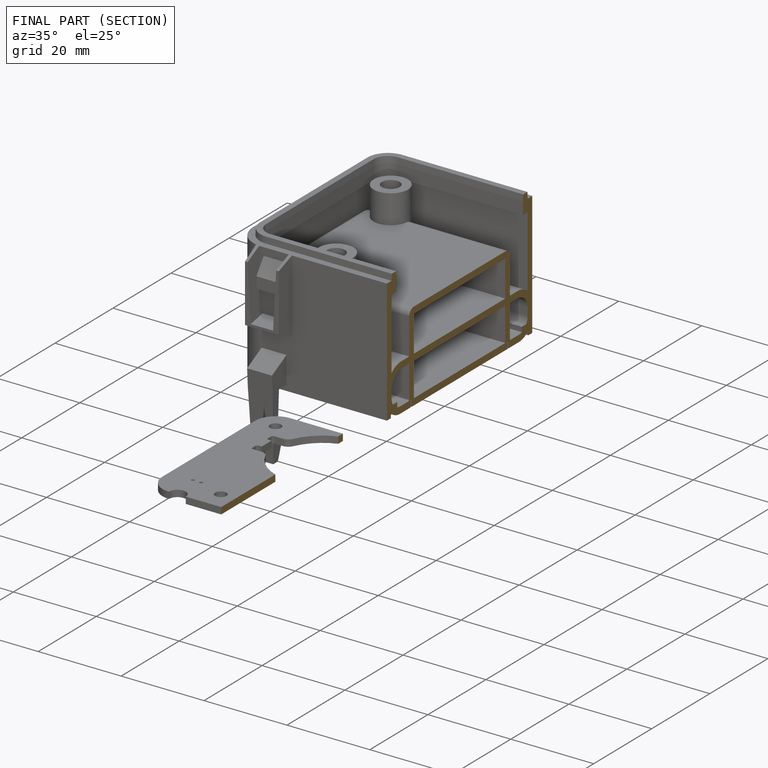
[diagram: finished part — half-section view (interior)]
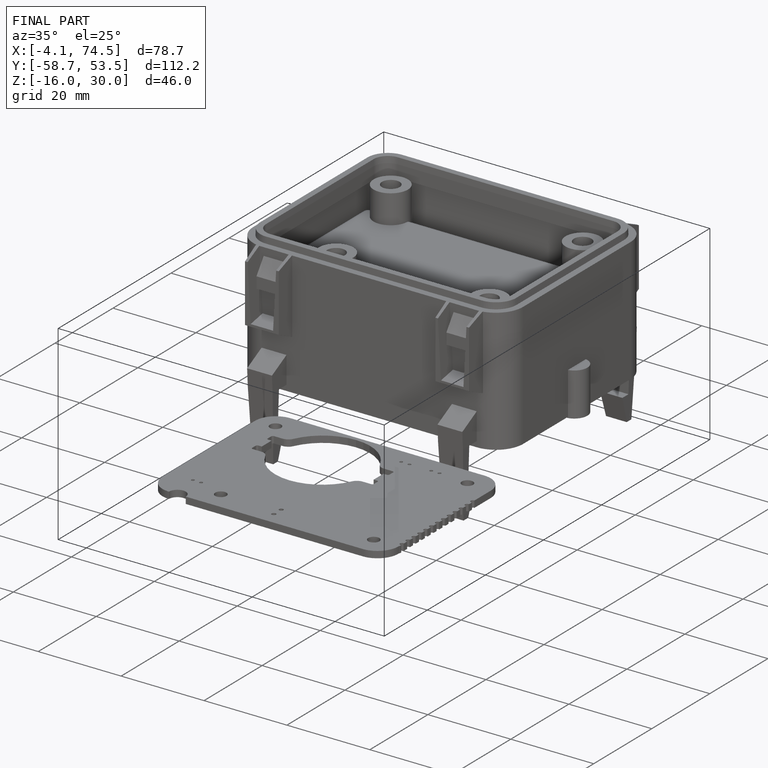
[diagram: finished part — iso view with bounding-box wireframe]
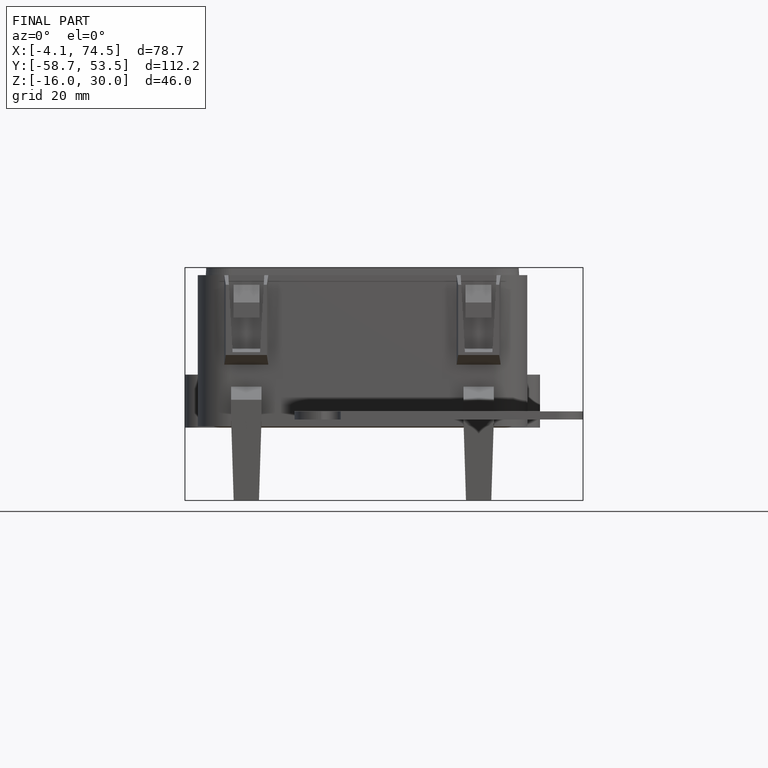
[diagram: finished part — front view with bounding-box wireframe]
